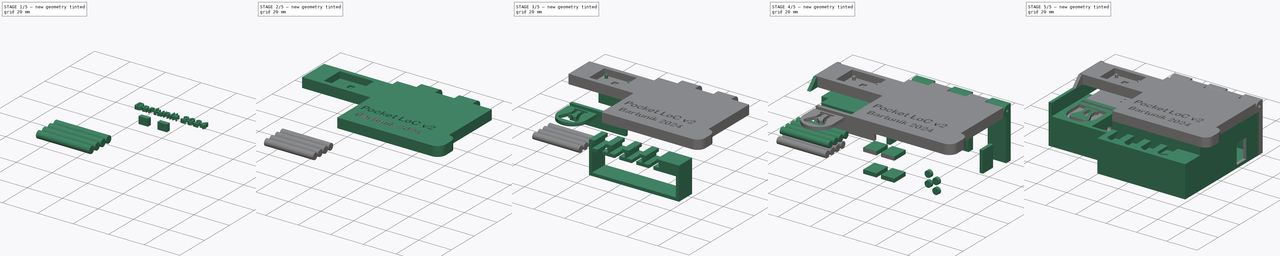
[diagram: build sequence overview — one tinted view per stage of 5, left to right]
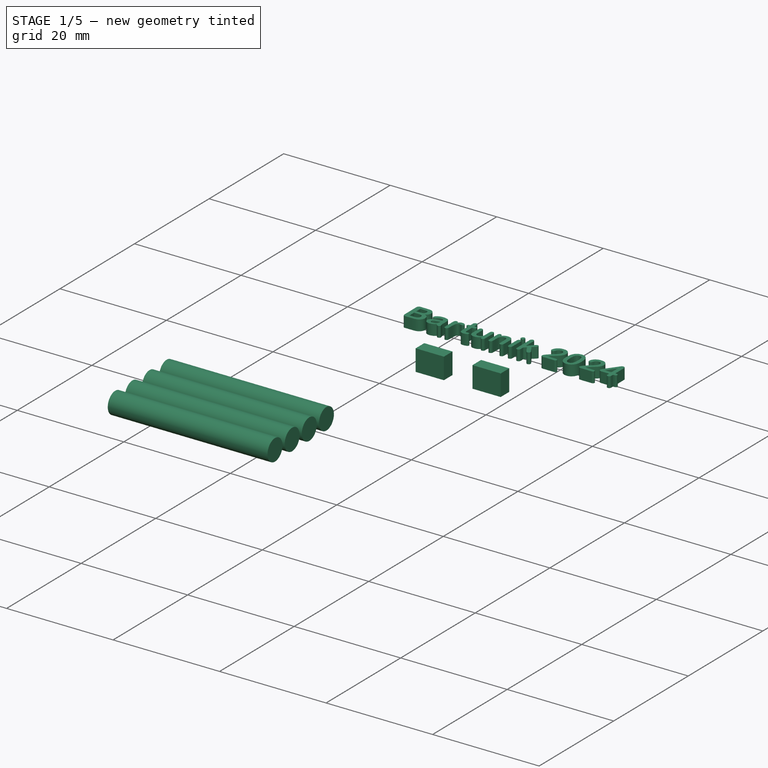
[diagram: stage 1 of 5 — iso view after this stage's code; geometry added in this stage tinted green]
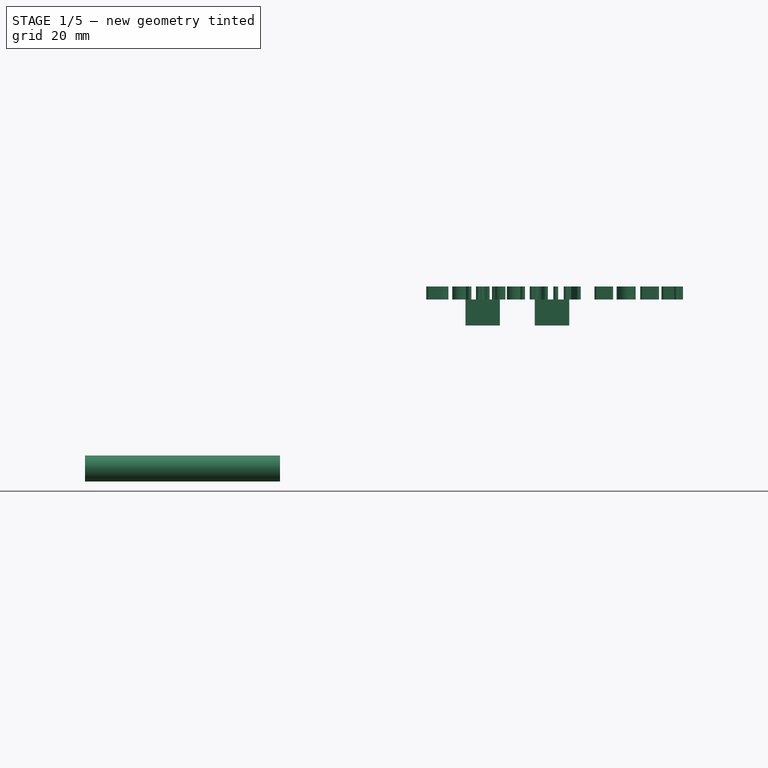
[diagram: stage 1 of 5 — front view after this stage's code; geometry added in this stage tinted green]
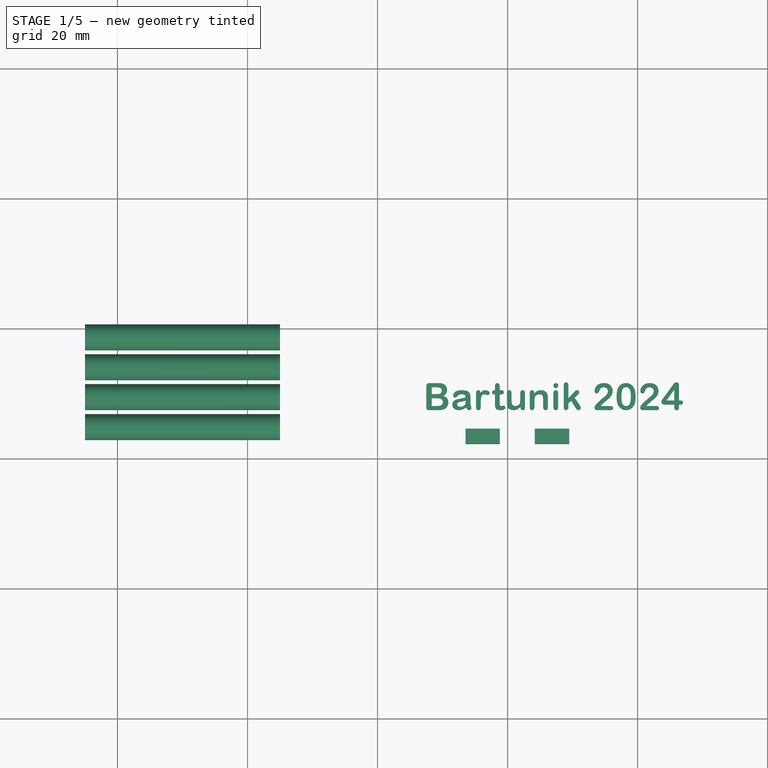
[diagram: stage 1 of 5 — top view after this stage's code; geometry added in this stage tinted green]
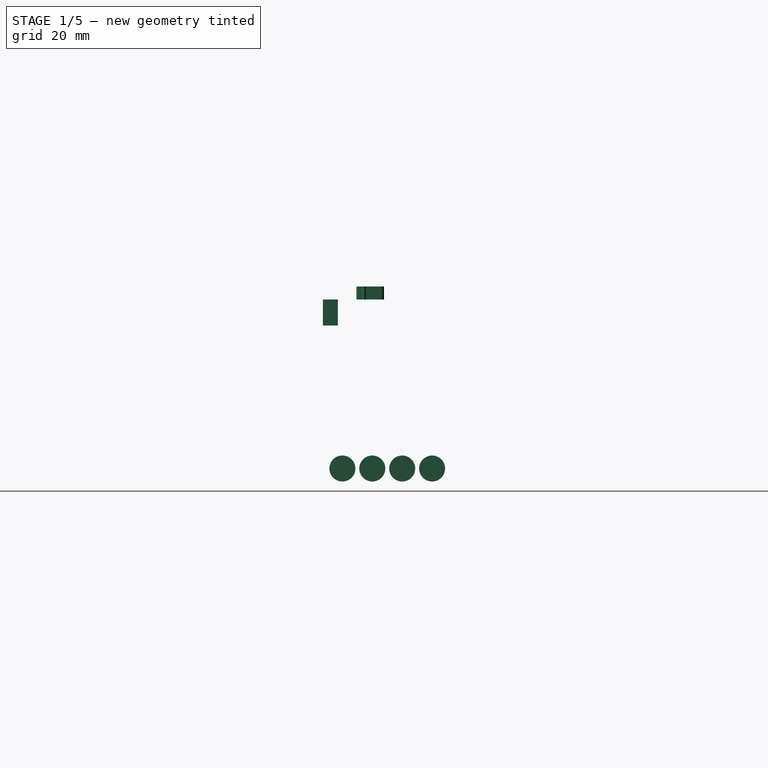
[diagram: stage 1 of 5 — right view after this stage's code; geometry added in this stage tinted green]
FCSTD DOCUMENT  (FreeCAD 0.20R29410 (Git))
Label: Housing v2
License: All rights reserved
LicenseURL: http://en.wikipedia.org/wiki/All_rights_reserved
objects: Part::Extrusion×36, Sketcher::SketchObject×33, Part::MultiFuse×5, Part::FeaturePython×2, Part::Part2DObjectPython×2, Part::Cut×2, Spreadsheet::Sheet×1
note: 78 computed .brp shape members not serialized (recipe doc carries the construction recipe); baked Part::Feature solids carry a one-line shape summary decoded from their .brp

FEATURE [Part::Extrusion] Extrude001  label="outer_wall_body"
  Base = -> Sketch002
  Dir = (0,0,1)
  DirMode = 2
  FaceMakerClass = Part::FaceMakerBullseye
  LengthFwd = 24
  LengthRev = 0
  Solid = true
  Symmetric = false
  expr: LengthFwd = <<params>>.box_height
FEATURE [Part::Extrusion] Extrude002  label="measurement_base_body"
  Base = -> Sketch001
  Dir = (0,0,1)
  DirMode = 2
  FaceMakerClass = Part::FaceMakerBullseye
  LengthFwd = 16
  LengthRev = 0
  Solid = true
  Symmetric = false
  expr: LengthFwd = <<params>>.measurement_height
FEATURE [Part::Extrusion] Extrude003  label="pump_holder_body"
  Base = -> Sketch003
  Dir = (0,0,1)
  DirMode = 2
  FaceMakerClass = Part::FaceMakerBullseye
  LengthFwd = 16
  LengthRev = 0
  Solid = true
  Symmetric = false
  expr: LengthFwd = <<params>>.pump_stack_height
FEATURE [Sketcher::SketchObject] Sketch006  label="sensor_space"
  ExternalGeometry = -> [Extrude002]
  FullyConstrained = true
  MapMode = 5
  Placement = pos=(42,0,0) rot=(0.57735,0.57735,0.57735;2.0944rad)
  Support = -> [Extrude002]
  sketch-geometry (16):
    g0: LineSegment StartX=29.125 StartY=16 StartZ=0 EndX=48.375 EndY=16 EndZ=0
    g1: LineSegment StartX=48.375 StartY=16 StartZ=0 EndX=48.375 EndY=14.5 EndZ=0
    g2: LineSegment StartX=29.125 StartY=16 StartZ=0 EndX=29.125 EndY=14.5 EndZ=0
    g3: LineSegment StartX=29.125 StartY=14.5 StartZ=0 EndX=31.125 EndY=14.5 EndZ=0
    g4: LineSegment StartX=31.125 StartY=14.5 StartZ=0 EndX=31.125 EndY=11.5 EndZ=0
    g5: LineSegment StartX=31.125 StartY=11.5 StartZ=0 EndX=32.125 EndY=11.5 EndZ=0
    g6: LineSegment StartX=32.125 StartY=11.5 StartZ=0 EndX=32.125 EndY=8 EndZ=0
    g7: LineSegment StartX=32.125 StartY=8 StartZ=0 EndX=45.375 EndY=8 EndZ=0
    g8: LineSegment StartX=45.375 StartY=8 StartZ=0 EndX=45.375 EndY=11.5 EndZ=0
    g9: LineSegment StartX=45.375 StartY=11.5 StartZ=0 EndX=46.375 EndY=11.5 EndZ=0
    g10: LineSegment StartX=46.375 StartY=11.5 StartZ=0 EndX=46.375 EndY=14.5 EndZ=0
    g11: LineSegment StartX=46.375 StartY=14.5 StartZ=0 EndX=48.375 EndY=14.5 EndZ=0
    g12: LineSegment StartX=31.125 StartY=14.5 StartZ=0 EndX=46.375 EndY=14.5 EndZ=0
    g13: LineSegment StartX=32.125 StartY=11.5 StartZ=0 EndX=45.375 EndY=11.5 EndZ=0
    g14: LineSegment StartX=48.375 StartY=16 StartZ=0 EndX=22.5 EndY=16 EndZ=0
    g15: LineSegment StartX=29.125 StartY=16 StartZ=0 EndX=55 EndY=16 EndZ=0
  constraints (44):
    c: Horizontal(g0)
    c: Coincident(g1,g0)
    c: Coincident(g2,g0)
    c: Coincident(g3,g2)
    c: Coincident(g4,g3)
    c: Vertical(g4)
    c: Coincident(g5,g4)
    c: Horizontal(g5)
    c: Coincident(g6,g5)
    c: Coincident(g7,g6)
    c: Horizontal(g7)
    c: Coincident(g8,g7)
    c: Vertical(g8)
    c: Coincident(g9,g8)
    c: Horizontal(g9)
    c: Coincident(g10,g9)
    c: Coincident(g11,g10)
    c: Horizontal(g11)
    c: Coincident(g1,g11)
    c: Vertical(g1)
    c: Vertical(g10)
    c: Vertical(g6)
    c: Horizontal(g3)
    c: Vertical(g2)
    c: Equal(g3,g11)
    c: DistanceX(g11,g11) = 2
    c: Equal(g5,g9)
    c: DistanceX(g9,g9) = 1
    c: Coincident(g12,g3)
    c: Coincident(g12,g10)
    c: Horizontal(g12)
    c: DistanceX(g12,g12) = 15.25
    c: Coincident(g13,g5)
    c: Coincident(g13,g8)
    c: Horizontal(g13)
    c: DistanceY(g4,g4) = 3
    c: DistanceY(g2,g2) = 1.5
    c: DistanceY(g6,g6) = 3.5
    c: Coincident(g14,g0)
    c: Coincident(g14,g-3)
    c: Coincident(g15,g0)
    c: Coincident(g15,g-4)
    c: Equal(g15,g14)
    c: Horizontal(g14)
FEATURE [Part::Extrusion] Extrude006  label="sensor_space_body"
  Base = -> Sketch006
  Dir = (1,0,0)
  DirMode = 2
  FaceMakerClass = Part::FaceMakerBullseye
  LengthFwd = 0
  LengthRev = 35.5
  Placement = pos=(-2.25,0,0) rot=(0,0,1;0rad)
  Solid = true
  Symmetric = false
  expr: .Placement.Base.x = -(<<params>>.measurement_width * 1mm - LengthRev) / 2
FEATURE [Sketcher::SketchObject] Sketch012  label="top_plane"
  ExternalGeometry = -> [Extrude001,Extrude006]
  FullyConstrained = true
  MapMode = 5
  Placement = pos=(0,0,24) rot=(0,0,1;0rad)
  Support = -> [Extrude001]
  expr: Constraints[20] = <<params>>.box_wall + 0.5
  sketch-geometry (12):
    g0: LineSegment StartX=100 StartY=52.5 StartZ=0 EndX=42 EndY=52.5 EndZ=0
    g1: LineSegment StartX=42 StartY=0 StartZ=0 EndX=100 EndY=0 EndZ=0
    g2: LineSegment StartX=42 StartY=52.5 StartZ=0 EndX=42 EndY=48.375 EndZ=0
    g3: LineSegment StartX=42 StartY=0 StartZ=0 EndX=42 EndY=29.125 EndZ=0
    g4: LineSegment StartX=42 StartY=48.375 StartZ=0 EndX=0 EndY=48.375 EndZ=0
    g5: LineSegment StartX=42 StartY=29.125 StartZ=0 EndX=0 EndY=29.125 EndZ=0
    g6: LineSegment StartX=0 StartY=48.375 StartZ=0 EndX=0 EndY=29.125 EndZ=0
    g7: LineSegment StartX=42 StartY=52.5 StartZ=0 EndX=42 EndY=55 EndZ=0
    g8: LineSegment StartX=100 StartY=52.5 StartZ=0 EndX=100 EndY=15 EndZ=0
    g9: ArcOfCircle CenterX=100 CenterY=5 CenterZ=0 NormalX=0 NormalY=0 NormalZ=1 AngleXU=0 Radius=5 StartAngle=4.71239 EndAngle=6.28319
    g10: ArcOfCircle CenterX=100 CenterY=10 CenterZ=0 NormalX=0 NormalY=0 NormalZ=1 AngleXU=0 Radius=5 StartAngle=0 EndAngle=1.5708
    g11: LineSegment StartX=105 StartY=10 StartZ=0 EndX=105 EndY=5 EndZ=0
  constraints (33):
    c: Coincident(g2,g0)
    c: Coincident(g3,g1)
    c: Vertical(g3)
    c: Vertical(g2)
    c: Coincident(g1,g-5)
    c: Coincident(g4,g2)
    c: PointOnObject(g4,g-6)
    c: Horizontal(g4)
    c: Coincident(g5,g3)
    c: PointOnObject(g5,g-6)
    c: Horizontal(g5)
    c: Coincident(g6,g4)
    c: Coincident(g6,g5)
    c: PointOnObject(g-7,g4)
    c: PointOnObject(g-8,g5)
    c: Horizontal(g0)
    c: Coincident(g1,g-5)
    c: Coincident(g7,g0)
    c: Coincident(g7,g-4)
    c: Vertical(g7)
    c: DistanceY(g7,g7) = 2.5
    c: Coincident(g8,g0)
    c: PointOnObject(g8,g-3)
    c: Vertical(g8)
    c: Vertical(g11)
    c: Coincident(g9,g1)
    c: Coincident(g10,g8)
    c: PointOnObject(g10,g-3)
    c: PointOnObject(g9,g-3)
    c: Tangent(g11,g10) = 1.5708
    c: Tangent(g11,g9) = 1.5708
    c: DistanceX(g9,g9) = 5
    c: DistanceY(g1,g8) = 15
FEATURE [Part::Extrusion] Extrude012  label="top_plane_body"
  Base = -> Sketch012
  Dir = (0,0,1)
  DirMode = 2
  FaceMakerClass = Part::FaceMakerBullseye
  LengthFwd = 6
  LengthRev = 0
  Solid = true
  Symmetric = false
FEATURE [Part::Extrusion] Extrude025  label="label_maker_body"
  Base = -> ShapeString001
  Dir = (0,0,1)
  DirMode = 2
  FaceMakerClass = Part::FaceMakerBullseye
  LengthFwd = 0
  LengthRev = 2
  Solid = false
  Symmetric = false
FEATURE [Sketcher::SketchObject] Sketch030  label="top_pins"
  ExternalGeometry = -> [Extrude001,Extrude003]
  FullyConstrained = true
  MapMode = 5
  Placement = pos=(0,2,0) rot=(0,0.707107,0.707107;3.14159rad)
  Support = -> [Extrude001]
  sketch-geometry (12):
    g0: LineSegment StartX=-69.3333 StartY=27 StartZ=0 EndX=-64.3333 EndY=27 EndZ=0
    g1: LineSegment StartX=-64.3333 StartY=27 StartZ=0 EndX=-64.3333 EndY=16 EndZ=0
    g2: LineSegment StartX=-64.3333 StartY=16 StartZ=0 EndX=-69.3333 EndY=16 EndZ=0
    g3: LineSegment StartX=-69.3333 StartY=16 StartZ=0 EndX=-69.3333 EndY=27 EndZ=0
    g4: LineSegment StartX=-58.6667 StartY=27 StartZ=0 EndX=-53.6667 EndY=27 EndZ=0
    g5: LineSegment StartX=-53.6667 StartY=27 StartZ=0 EndX=-53.6667 EndY=16 EndZ=0
    g6: LineSegment StartX=-53.6667 StartY=16 StartZ=0 EndX=-58.6667 EndY=16 EndZ=0
    g7: LineSegment StartX=-58.6667 StartY=16 StartZ=0 EndX=-58.6667 EndY=27 EndZ=0
    g8: LineSegment StartX=-58.6667 StartY=27 StartZ=0 EndX=-64.3333 EndY=27 EndZ=0
    g9: LineSegment StartX=-75 StartY=16 StartZ=0 EndX=-69.3333 EndY=16 EndZ=0
    g10: LineSegment StartX=-64.3333 StartY=16 StartZ=0 EndX=-58.6667 EndY=16 EndZ=0
    g11: LineSegment StartX=-53.6667 StartY=16 StartZ=0 EndX=-48 EndY=16 EndZ=0
  constraints (32):
    c: Coincident(g0,g1)
    c: Coincident(g1,g2)
    c: Coincident(g2,g3)
    c: Coincident(g3,g0)
    c: Horizontal(g0)
    c: Horizontal(g2)
    c: Vertical(g1)
    c: Vertical(g3)
    c: PointOnObject(g1,g-4)
    c: Coincident(g4,g5)
    c: Coincident(g5,g6)
    c: Coincident(g6,g7)
    c: Coincident(g7,g4)
    c: Horizontal(g4)
    c: Horizontal(g6)
    c: Vertical(g5)
    c: Vertical(g7)
    c: PointOnObject(g5,g-4)
    c: Coincident(g8,g4)
    c: Coincident(g8,g0)
    c: Horizontal(g8)
    c: Equal(g0,g4)
    c: DistanceX(g0,g0) = 5
    c: Coincident(g9,g-4)
    c: Coincident(g9,g2)
    c: Coincident(g10,g1)
    c: Coincident(g10,g6)
    c: Coincident(g11,g5)
    c: Coincident(g11,g-4)
    c: Equal(g11,g10)
    c: Equal(g10,g9)
    c: DistanceY(g-3,g4) = 3
FEATURE [Part::Extrusion] Extrude032  label="top_pins_body"
  Base = -> Sketch030
  Dir = (0,1,-2e-16)
  DirMode = 2
  FaceMakerClass = Part::FaceMakerBullseye
  LengthFwd = 2
  LengthRev = 0
  Solid = true
  Symmetric = false
FEATURE [Sketcher::SketchObject] Sketch031  label="pin_holes"
  ExternalGeometry = -> [Extrude032]
  FullyConstrained = true
  MapMode = 5
  Placement = pos=(0,0,24) rot=(1,0,0;3.14159rad)
  Support = -> [Extrude012]
  sketch-geometry (16):
    g0: LineSegment StartX=53.6667 StartY=-2 StartZ=0 EndX=53.5167 EndY=-2 EndZ=0
    g1: LineSegment StartX=58.6667 StartY=-2 StartZ=0 EndX=58.6667 EndY=-1.85 EndZ=0
    g2: LineSegment StartX=64.3333 StartY=-2 StartZ=0 EndX=64.1833 EndY=-2 EndZ=0
    g3: LineSegment StartX=69.3333 StartY=-2 StartZ=0 EndX=69.3333 EndY=-1.85 EndZ=0
    g4: LineSegment StartX=53.5167 StartY=-1.85 StartZ=0 EndX=58.8167 EndY=-1.85 EndZ=0
    g5: LineSegment StartX=58.8167 StartY=-1.85 StartZ=0 EndX=58.8167 EndY=-4.15 EndZ=0
    g6: LineSegment StartX=58.8167 StartY=-4.15 StartZ=0 EndX=53.5167 EndY=-4.15 EndZ=0
    g7: LineSegment StartX=53.5167 StartY=-4.15 StartZ=0 EndX=53.5167 EndY=-1.85 EndZ=0
    g8: LineSegment StartX=64.1833 StartY=-1.85 StartZ=0 EndX=69.4833 EndY=-1.85 EndZ=0
    g9: LineSegment StartX=69.4833 StartY=-1.85 StartZ=0 EndX=69.4833 EndY=-4.15 EndZ=0
    g10: LineSegment StartX=69.4833 StartY=-4.15 StartZ=0 EndX=64.1833 EndY=-4.15 EndZ=0
    g11: LineSegment StartX=64.1833 StartY=-4.15 StartZ=0 EndX=64.1833 EndY=-1.85 EndZ=0
    g12: LineSegment StartX=58.6667 StartY=-4 StartZ=0 EndX=58.8167 EndY=-4 EndZ=0
    g13: LineSegment StartX=53.6667 StartY=-4 StartZ=0 EndX=53.6667 EndY=-4.15 EndZ=0
    g14: LineSegment StartX=64.3333 StartY=-4 StartZ=0 EndX=64.3333 EndY=-4.15 EndZ=0
    g15: LineSegment StartX=69.3333 StartY=-4 StartZ=0 EndX=69.4833 EndY=-4 EndZ=0
  constraints (48):
    c: Coincident(g0,g-5)
    c: Coincident(g1,g-5)
    c: Coincident(g2,g-3)
    c: Coincident(g3,g-3)
    c: Vertical(g3)
    c: Equal(g3,g2)
    c: Equal(g1,g0)
    c: Vertical(g1)
    c: Horizontal(g2)
    c: Horizontal(g0)
    c: Distance(g1) = 0.15
    c: Coincident(g4,g5)
    c: Coincident(g5,g6)
    c: Coincident(g6,g7)
    c: Coincident(g7,g4)
    c: Horizontal(g4)
    c: Horizontal(g6)
    c: Vertical(g5)
    c: Vertical(g7)
    c: PointOnObject(g0,g7)
    c: PointOnObject(g1,g4)
    c: Coincident(g8,g9)
    c: Coincident(g9,g10)
    c: Coincident(g10,g11)
    c: Coincident(g11,g8)
    c: Horizontal(g8)
    c: Horizontal(g10)
    c: Vertical(g9)
    c: Vertical(g11)
    c: PointOnObject(g2,g11)
    c: PointOnObject(g3,g8)
    c: Coincident(g12,g-6)
    c: PointOnObject(g12,g5)
    c: Coincident(g13,g-6)
    c: PointOnObject(g13,g6)
    c: Coincident(g14,g-4)
    c: PointOnObject(g14,g10)
    c: Coincident(g15,g-4)
    c: PointOnObject(g15,g9)
    c: Horizontal(g12)
    c: Vertical(g13)
    c: Horizontal(g15)
    c: Vertical(g14)
    c: Equal(g14,g15)
    c: Equal(g15,g12)
    c: Equal(g12,g13)
    c: Equal(g13,g1)
    c: Equal(g2,g1)
FEATURE [Part::Extrusion] Extrude033  label="pin_holes_body"
  Base = -> Sketch031
  Dir = (0,0,-1)
  DirMode = 2
  FaceMakerClass = Part::FaceMakerBullseye
  LengthFwd = 0
  LengthRev = 4
  Solid = true
  Symmetric = false
FEATURE [Part::Extrusion] Extrude035  label="storage_tube_holes"
  Base = -> Sketch010
  Dir = (1,0,0)
  DirMode = 2
  FaceMakerClass = Part::FaceMakerBullseye
  LengthFwd = 0
  LengthRev = 30
  Placement = pos=(-2,0,-6) rot=(0,0,1;0rad)
  Solid = true
  Symmetric = false
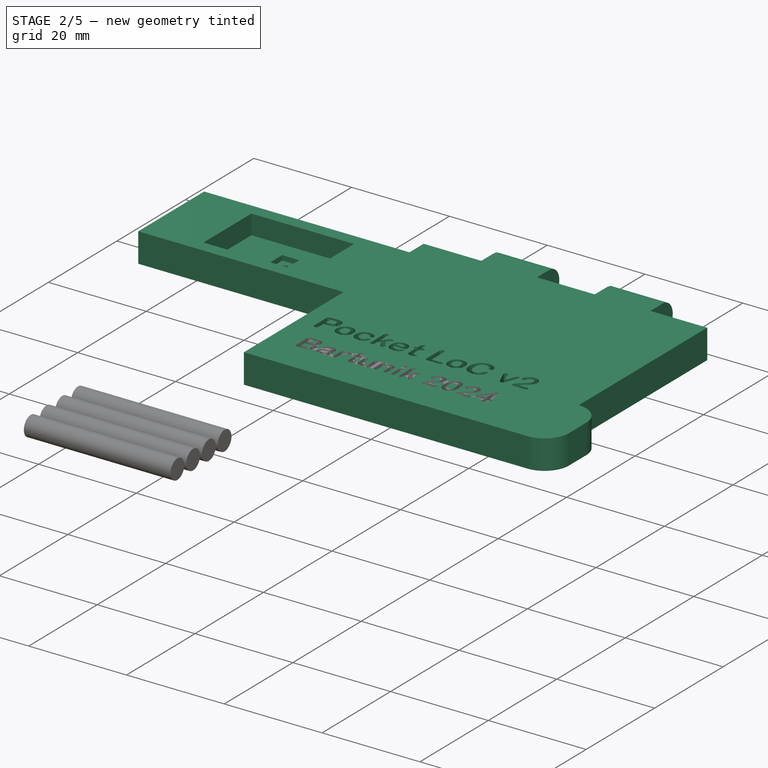
[diagram: stage 2 of 5 — iso view after this stage's code; geometry added in this stage tinted green]
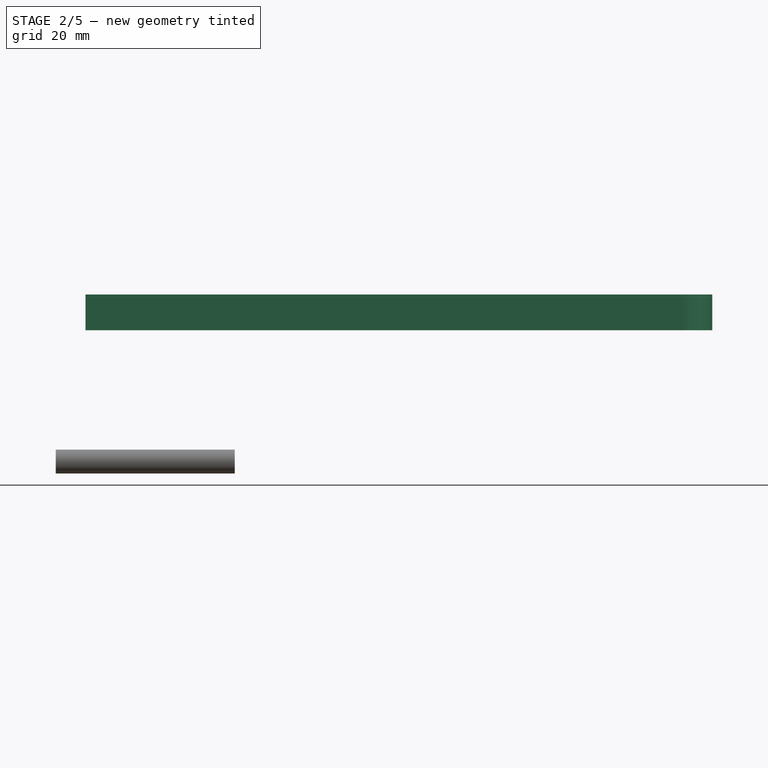
[diagram: stage 2 of 5 — front view after this stage's code; geometry added in this stage tinted green]
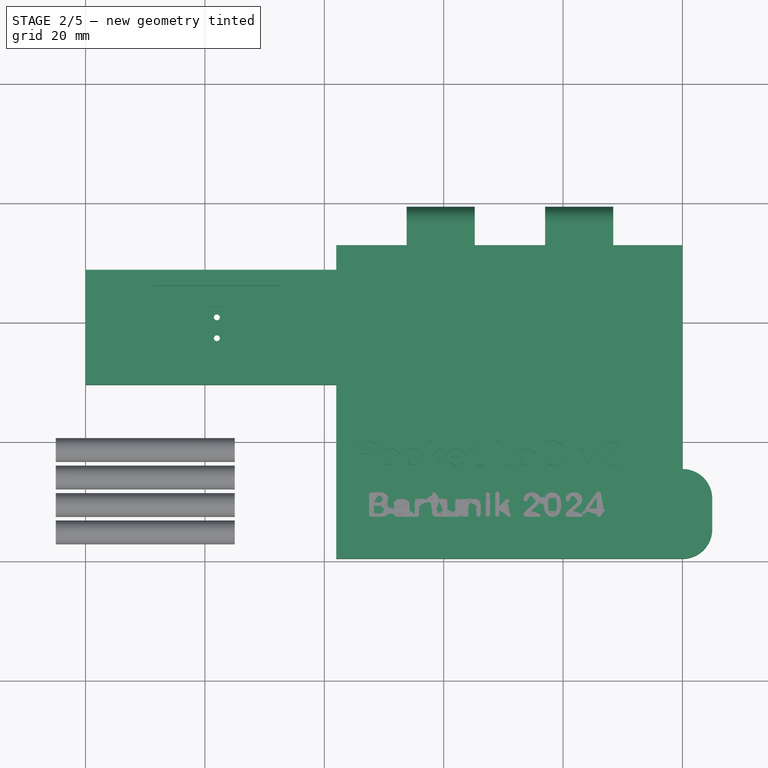
[diagram: stage 2 of 5 — top view after this stage's code; geometry added in this stage tinted green]
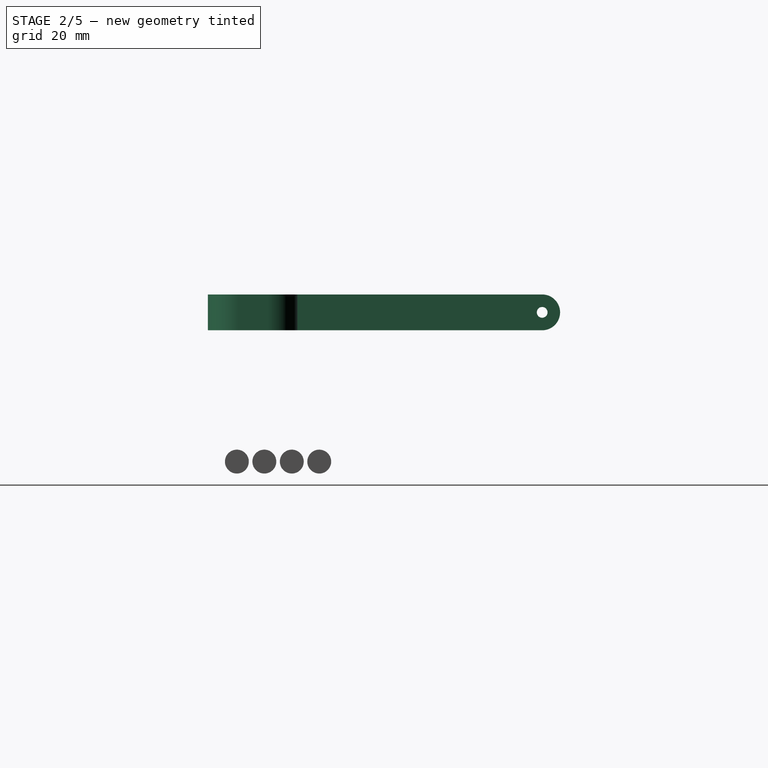
[diagram: stage 2 of 5 — right view after this stage's code; geometry added in this stage tinted green]
FEATURE [Sketcher::SketchObject] Sketch013  label="led_board_space"
  ExternalGeometry = -> [Extrude006]
  FullyConstrained = true
  MapMode = 5
  Placement = pos=(0,0,30) rot=(0,0,1;0rad)
  Support = -> [Extrude012]
  sketch-geometry (5):
    g0: LineSegment StartX=11.5 StartY=45.75 StartZ=0 EndX=32.5 EndY=45.75 EndZ=0
    g1: LineSegment StartX=32.5 StartY=45.75 StartZ=0 EndX=32.5 EndY=31.75 EndZ=0
    g2: LineSegment StartX=32.5 StartY=31.75 StartZ=0 EndX=11.5 EndY=31.75 EndZ=0
    g3: LineSegment StartX=11.5 StartY=31.75 StartZ=0 EndX=11.5 EndY=45.75 EndZ=0
    g4: GeomPoint X=22 Y=38.75 Z=0
  constraints (12):
    c: Coincident(g0,g1)
    c: Coincident(g1,g2)
    c: Coincident(g2,g3)
    c: Coincident(g3,g0)
    c: Horizontal(g0)
    c: Horizontal(g2)
    c: Vertical(g1)
    c: Vertical(g3)
    c: DistanceY(g1,g1) = 14
    c: DistanceX(g0,g0) = 21
    c: Symmetric(g0,g1,g4)
    c: Symmetric(g-3,g-4,g4)
FEATURE [Part::Extrusion] Extrude013  label="led_board_space_body"
  Base = -> Sketch013
  Dir = (0,0,1)
  DirMode = 2
  FaceMakerClass = Part::FaceMakerBullseye
  LengthFwd = 0
  LengthRev = 4
  Solid = true
  Symmetric = false
FEATURE [Sketcher::SketchObject] Sketch018  label="led_space"
  ExternalGeometry = -> [Sketch013]
  FullyConstrained = true
  MapMode = 5
  Placement = pos=(0,0,26) rot=(1,0,0;3.14159rad)
  Support = -> [Extrude013]
  sketch-geometry (5):
    g0: LineSegment StartX=20.25 StartY=-35.25 StartZ=0 EndX=23.75 EndY=-35.25 EndZ=0
    g1: LineSegment StartX=23.75 StartY=-35.25 StartZ=0 EndX=23.75 EndY=-42.25 EndZ=0
    g2: LineSegment StartX=23.75 StartY=-42.25 StartZ=0 EndX=20.25 EndY=-42.25 EndZ=0
    g3: LineSegment StartX=20.25 StartY=-42.25 StartZ=0 EndX=20.25 EndY=-35.25 EndZ=0
    g4: GeomPoint X=22 Y=-38.75 Z=0
  constraints (12):
    c: Coincident(g0,g1)
    c: Coincident(g1,g2)
    c: Coincident(g2,g3)
    c: Coincident(g3,g0)
    c: Horizontal(g0)
    c: Horizontal(g2)
    c: Vertical(g1)
    c: Vertical(g3)
    c: DistanceY(g3,g3) = 7
    c: DistanceX(g0,g0) = 3.5
    c: Symmetric(g0,g1,g4)
    c: Symmetric(g-3,g-4,g4)
FEATURE [Part::Extrusion] Extrude018  label="led_space_body"
  Base = -> Sketch018
  Dir = (0,0,-1)
  DirMode = 2
  FaceMakerClass = Part::FaceMakerBullseye
  LengthFwd = 1
  LengthRev = 0
  Solid = true
  Symmetric = false
FEATURE [Sketcher::SketchObject] Sketch019  label="led_holes"
  ExternalGeometry = -> [Sketch018]
  FullyConstrained = true
  MapMode = 5
  Placement = pos=(0,0,25) rot=(1,0,0;3.14159rad)
  Support = -> [Extrude018]
  sketch-geometry (4):
    g0: Circle CenterX=22 CenterY=-37 CenterZ=0 NormalX=0 NormalY=0 NormalZ=1 AngleXU=0 Radius=0.5
    g1: Circle CenterX=22 CenterY=-40.5 CenterZ=0 NormalX=0 NormalY=0 NormalZ=1 AngleXU=0 Radius=0.5
    g2: LineSegment StartX=22 StartY=-37 StartZ=0 EndX=22 EndY=-38.75 EndZ=0
    g3: LineSegment StartX=22 StartY=-40.5 StartZ=0 EndX=22 EndY=-38.75 EndZ=0
  constraints (10):
    c: Equal(g0,g1)
    c: Coincident(g2,g0)
    c: Vertical(g2)
    c: Coincident(g3,g1)
    c: Coincident(g3,g2)
    c: Vertical(g3)
    c: Equal(g2,g3)
    c: Symmetric(g-3,g-4,g2)
    c: Diameter(g0) = 1
    c: DistanceY(g1,g0) = 3.5
FEATURE [Part::Extrusion] Extrude019  label="led_holes_body"
  Base = -> Sketch019
  Dir = (0,0,-1)
  DirMode = 2
  FaceMakerClass = Part::FaceMakerBullseye
  LengthFwd = 2
  LengthRev = 0
  Solid = true
  Symmetric = false
FEATURE [Sketcher::SketchObject] Sketch020  label="fcc_trench"
  ExternalGeometry = -> [Sketch013,Sketch012]
  FullyConstrained = true
  MapMode = 5
  Placement = pos=(0,0,24) rot=(1,0,0;3.14159rad)
  Support = -> [Extrude012]
  sketch-geometry (8):
    g0: LineSegment StartX=32.5 StartY=-35.25 StartZ=0 EndX=51 EndY=-35.25 EndZ=0
    g1: LineSegment StartX=32.5 StartY=-42.25 StartZ=0 EndX=32.5 EndY=-35.25 EndZ=0
    g2: LineSegment StartX=51 StartY=-51.5 StartZ=0 EndX=44 EndY=-51.5 EndZ=0
    g3: LineSegment StartX=44 StartY=-51.5 StartZ=0 EndX=44 EndY=-42.25 EndZ=0
    g4: LineSegment StartX=51 StartY=-35.25 StartZ=0 EndX=51 EndY=-51.5 EndZ=0
    g5: LineSegment StartX=44 StartY=-42.25 StartZ=0 EndX=32.5 EndY=-42.25 EndZ=0
    g6: LineSegment StartX=32.5 StartY=-31.75 StartZ=0 EndX=32.5 EndY=-35.25 EndZ=0
    g7: LineSegment StartX=32.5 StartY=-42.25 StartZ=0 EndX=32.5 EndY=-45.75 EndZ=0
  constraints (22):
    c: Coincident(g1,g0)
    c: Horizontal(g0)
    c: Vertical(g1)
    c: Coincident(g2,g3)
    c: Coincident(g4,g2)
    c: Horizontal(g2)
    c: Vertical(g3)
    c: Vertical(g4)
    c: Coincident(g4,g0)
    c: Coincident(g5,g3)
    c: Coincident(g5,g1)
    c: Horizontal(g5)
    c: Equal(g2,g1)
    c: PointOnObject(g0,g-3)
    c: Coincident(g6,g-3)
    c: Coincident(g6,g0)
    c: Coincident(g7,g1)
    c: Coincident(g7,g-3)
    c: Equal(g7,g6)
    c: DistanceY(g1,g1) = 7
    c: DistanceX(g-4,g2) = 2
    c: DistanceY(g-4,g2) = 1
FEATURE [Part::Extrusion] Extrude020  label="fcc_trench_body"
  Base = -> Sketch020
  Dir = (0,0,-1)
  DirMode = 2
  FaceMakerClass = Part::FaceMakerBullseye
  LengthFwd = 0
  LengthRev = 4
  Solid = true
  Symmetric = false
FEATURE [Sketcher::SketchObject] Sketch023  label="top_hinge"
  ExternalGeometry = -> [Sketch011,Extrude012]
  FullyConstrained = true
  MapMode = 5
  Placement = pos=(100,0,0) rot=(0.57735,0.57735,0.57735;2.0944rad)
  Support = -> [Extrude012]
  sketch-geometry (8):
    g0: Circle CenterX=56 CenterY=27 CenterZ=0 NormalX=0 NormalY=0 NormalZ=1 AngleXU=0 Radius=0.9
    g1: LineSegment StartX=55.1 StartY=27 StartZ=0 EndX=55 EndY=27 EndZ=0
    g2: LineSegment StartX=55 StartY=27 StartZ=0 EndX=56 EndY=27 EndZ=0
    g3: LineSegment StartX=56 StartY=30 StartZ=0 EndX=52.5 EndY=30 EndZ=0
    g4: LineSegment StartX=56 StartY=24 StartZ=0 EndX=52.5 EndY=24 EndZ=0
    g5: LineSegment StartX=56 StartY=30 StartZ=0 EndX=56 EndY=27 EndZ=0
    g6: LineSegment StartX=52.5 StartY=30 StartZ=0 EndX=52.5 EndY=24 EndZ=0
    g7: ArcOfCircle CenterX=56 CenterY=27 CenterZ=0 NormalX=0 NormalY=0 NormalZ=1 AngleXU=0 Radius=3 StartAngle=4.7124 EndAngle=7.85398
  constraints (20):
    c: Coincident(g0,g-3)
    c: PointOnObject(g1,g0)
    c: PointOnObject(g1,g-3)
    c: Horizontal(g1)
    c: Coincident(g2,g1)
    c: Coincident(g2,g0)
    c: Horizontal(g2)
    c: DistanceX(g1,g1) = 0.1
    c: Horizontal(g3)
    c: Horizontal(g4)
    c: Coincident(g5,g0)
    c: Vertical(g5)
    c: Coincident(g3,g-5)
    c: Coincident(g4,g-5)
    c: Coincident(g6,g3)
    c: Coincident(g6,g4)
    c: Coincident(g3,g5)
    c: Coincident(g7,g0)
    c: Coincident(g7,g3)
    c: Coincident(g7,g4)
FEATURE [Part::Extrusion] Extrude023  label="top_hinge_body"
  Base = -> Sketch023
  Dir = (1,0,0)
  DirMode = 2
  FaceMakerClass = Part::FaceMakerBullseye
  LengthFwd = 0
  LengthRev = 11.4
  Placement = pos=(-11.6,0,0) rot=(0,0,1;0rad)
  Solid = true
  Symmetric = false
  expr: .Placement.Base.x = -(<<params>>.hinge_segment_size + <<params>>.hinge_tolerance)
  expr: LengthRev = <<params>>.hinge_segment_size
FEATURE [Part::FeaturePython] Array001  label="top_hinges"  # Draft array (typed FeaturePython)
  AlwaysSyncPlacement = false
  Angle = 360
  ArrayType = 0
  Axis = (0,0,1)
  Base = -> Extrude023
  Center = (0,0,0)
  Count = 2
  ExpandArray = false
  Fuse = false
  IntervalAxis = (0,0,0)
  IntervalX = (-23.2,0,0)
  IntervalY = (0,100,0)
  IntervalZ = (0,0,100)
  NumberCircles = 3
  NumberPolar = 5
  NumberX = 2
  NumberY = 1
  NumberZ = 1
  PlacementList = 2 placements: [(-11.6,0,0),(-34.8,0,0)]
  RadialDistance = 50
  ScaleList = (2) [(1,1,1),(1,1,1)]
  Symmetry = 1
  TangentialDistance = 25
  expr: .IntervalX.x = -(<<params>>.hinge_segment_size + <<params>>.hinge_tolerance) * 2
FEATURE [Part::Part2DObjectPython] ShapeString  label="label_title"  # Draft 2D object (typed FeaturePython)
  FontFile = Arial Bold Font.TTF
  Placement = pos=(45,15,30) rot=(0,0,1;0rad)
  Size = 5
  String = Pocket LoC v2
  Tracking = 0
FEATURE [Part::Part2DObjectPython] ShapeString001  label="label_maker"  # Draft 2D object (typed FeaturePython)
  FontFile = Arial Bold Font.TTF
  Placement = pos=(47,7,30) rot=(0,0,1;0rad)
  Size = 4.5
  String = Bartunik 2024
  Tracking = 0
FEATURE [Part::Extrusion] Extrude024  label="label_title_body"
  Base = -> ShapeString
  Dir = (0,0,1)
  DirMode = 2
  FaceMakerClass = Part::FaceMakerBullseye
  LengthFwd = 0
  LengthRev = 2
  Solid = false
  Symmetric = false
FEATURE [Part::MultiFuse] Fusion006  label="top_cuts"
  Shapes = -> [Extrude013,Extrude018,Extrude019,Extrude020,Extrude024,Extrude025,Extrude033]
FEATURE [Part::Cut] Cut001  label="top_raw"
  Base = -> Extrude012
  Tool = -> Fusion006
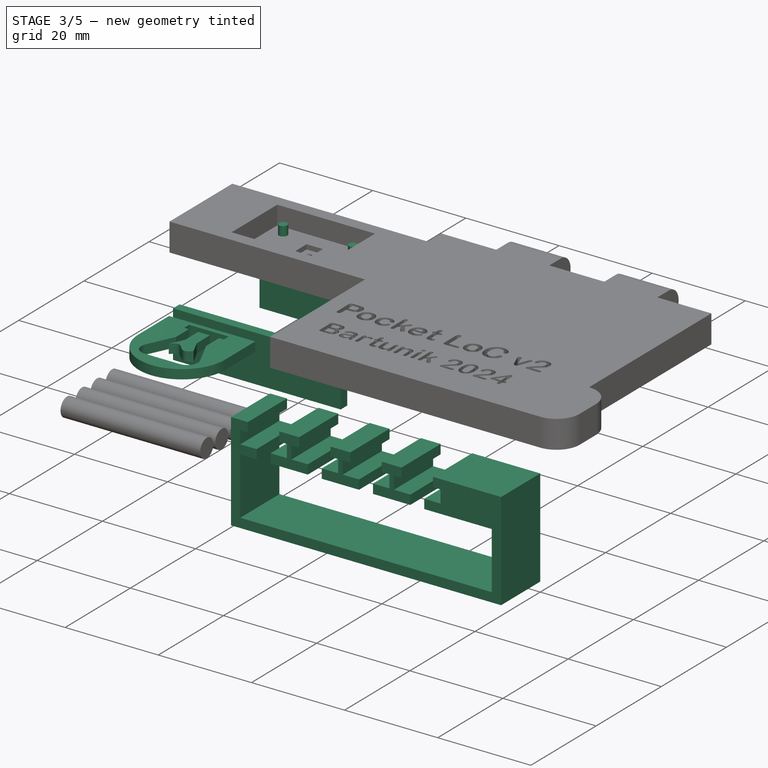
[diagram: stage 3 of 5 — iso view after this stage's code; geometry added in this stage tinted green]
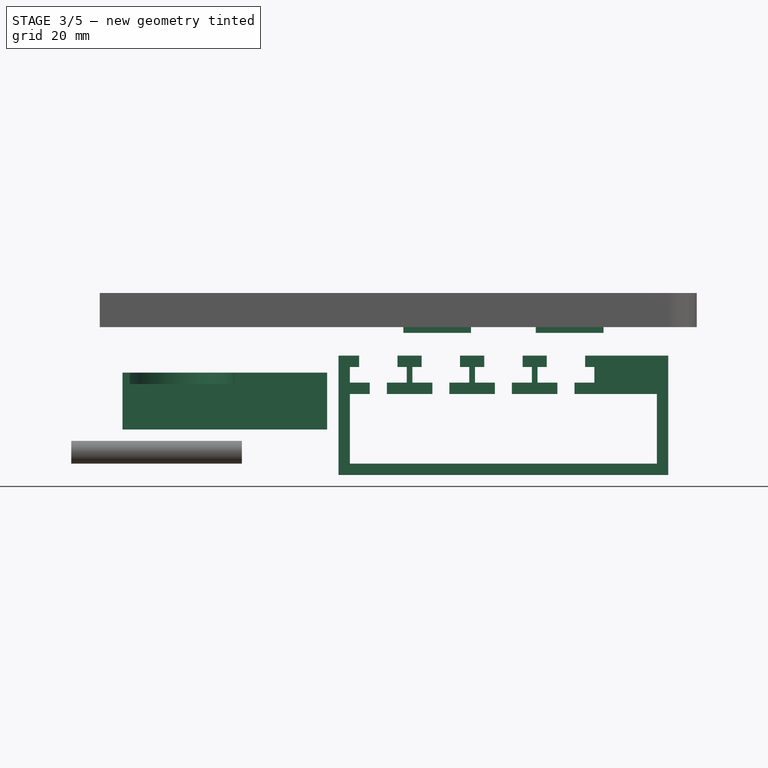
[diagram: stage 3 of 5 — front view after this stage's code; geometry added in this stage tinted green]
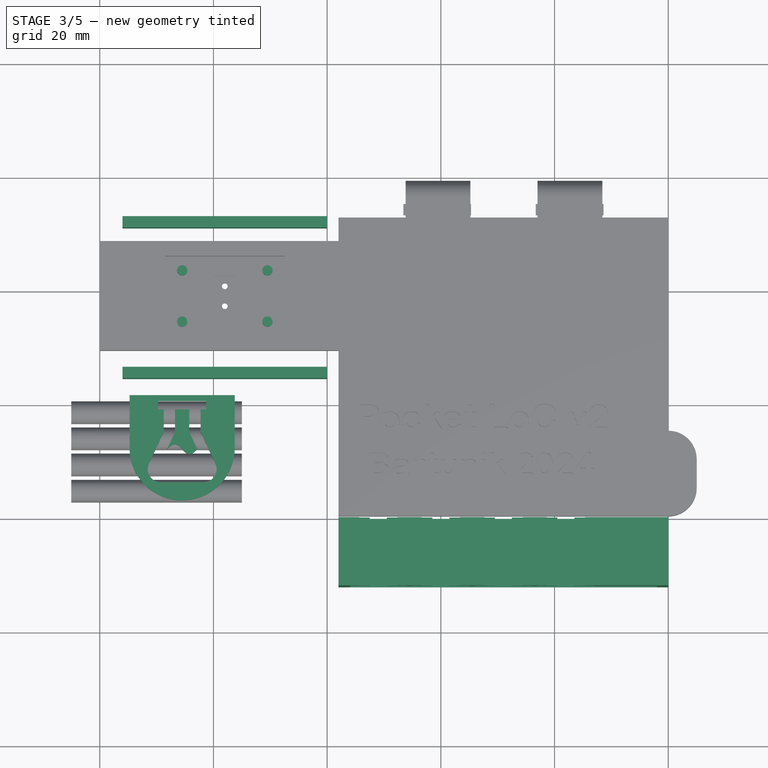
[diagram: stage 3 of 5 — top view after this stage's code; geometry added in this stage tinted green]
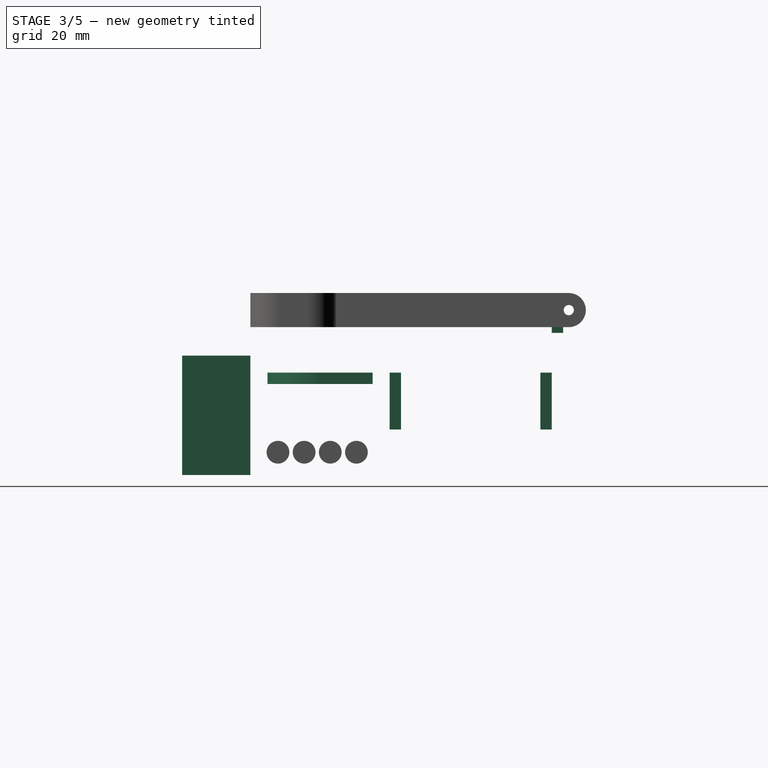
[diagram: stage 3 of 5 — right view after this stage's code; geometry added in this stage tinted green]
FEATURE [Sketcher::SketchObject] Sketch  label="ground_plane"
  FullyConstrained = true
  expr: Constraints[8] = <<params>>.box_length
  expr: Constraints[9] = <<params>>.box_width
  sketch-geometry (4):
    g0: LineSegment StartX=-4e-16 StartY=55 StartZ=0 EndX=100 EndY=55 EndZ=0
    g1: LineSegment StartX=100 StartY=55 StartZ=0 EndX=100 EndY=0 EndZ=0
    g2: LineSegment StartX=100 StartY=0 StartZ=0 EndX=0 EndY=0 EndZ=0
    g3: LineSegment StartX=-4e-16 StartY=0 StartZ=0 EndX=-4e-16 EndY=55 EndZ=0
  constraints (11):
    c: Coincident(g0,g1)
    c: Coincident(g1,g2)
    c: Coincident(g2,g3)
    c: Coincident(g3,g0)
    c: Horizontal(g0)
    c: Horizontal(g2)
    c: Vertical(g1)
    c: Vertical(g3)
    c: DistanceX(g0,g0) = 100
    c: DistanceY(g1,g1) = 55
    c: Coincident(g2,g-1)
FEATURE [Spreadsheet::Sheet] Spreadsheet  label="params"
  cells = A2=microfluidic chip width [mm]; B2=25; D2=measurement width [mm]; E2(measurement_width)==(B2 - B3) * 2; A3=unused edge of microfluidic chip [mm]; B3=5; A5=box length [mm]; B5(box_length)=100; A6=box width [mm]; B6(box_width)=55; A7=box outer wall strength [mm]; B7(box_wall)=2; A9=pump stack height [mm]; B9(pump_stack_height)=16; D9=box height [mm]; E9(box_height)==B9 + B10; A10=microfluidic chip height [mm]; B10=8; D10=measurement height [mm]; E10(measurement_height)==B9; A12=hinge tolerance [mm]; B12(hinge_tolerance)=0.2; A13=hinge segment size [mm]; B13(hinge_segment_size)==(B5 - E2 - B7) / 5 - B12
FEATURE [Sketcher::SketchObject] Sketch002  label="outer_wall"
  ExternalGeometry = -> [Sketch]
  FullyConstrained = true
  expr: Constraints[37] = <<params>>.box_wall
  expr: Constraints[38] = <<params>>.measurement_width
  sketch-geometry (14):
    g0: LineSegment StartX=-4e-16 StartY=55 StartZ=0 EndX=2 EndY=55 EndZ=0
    g1: LineSegment StartX=2 StartY=55 StartZ=0 EndX=2 EndY=0 EndZ=0
    g2: LineSegment StartX=2 StartY=0 StartZ=0 EndX=-4e-16 EndY=0 EndZ=0
    g3: LineSegment StartX=-4e-16 StartY=0 StartZ=0 EndX=-4e-16 EndY=55 EndZ=0
    g4: LineSegment StartX=42 StartY=55 StartZ=0 EndX=100 EndY=55 EndZ=0
    g5: LineSegment StartX=100 StartY=55 StartZ=0 EndX=100 EndY=0 EndZ=0
    g6: LineSegment StartX=42 StartY=53 StartZ=0 EndX=42 EndY=55 EndZ=0
    g7: LineSegment StartX=42 StartY=0 StartZ=0 EndX=100 EndY=0 EndZ=0
    g8: LineSegment StartX=42 StartY=2 StartZ=0 EndX=42 EndY=0 EndZ=0
    g9: LineSegment StartX=42 StartY=53 StartZ=0 EndX=98 EndY=53 EndZ=0
    g10: LineSegment StartX=98 StartY=53 StartZ=0 EndX=98 EndY=2 EndZ=0
    g11: LineSegment StartX=98 StartY=2 StartZ=0 EndX=42 EndY=2 EndZ=0
    g12: LineSegment StartX=98 StartY=53 StartZ=0 EndX=100 EndY=53 EndZ=0
    g13: LineSegment StartX=42 StartY=53 StartZ=0 EndX=42 EndY=2 EndZ=0
  constraints (39):
    c: Coincident(g0,g1)
    c: Coincident(g1,g2)
    c: Coincident(g2,g3)
    c: Coincident(g3,g0)
    c: Horizontal(g0)
    c: Horizontal(g2)
    c: Vertical(g1)
    c: Vertical(g3)
    c: Coincident(g0,g-6)
    c: PointOnObject(g1,g-5)
    c: Coincident(g4,g5)
    c: Coincident(g6,g4)
    c: Horizontal(g4)
    c: Vertical(g5)
    c: Vertical(g6)
    c: Coincident(g8,g7)
    c: Horizontal(g7)
    c: Vertical(g8)
    c: PointOnObject(g7,g-5)
    c: Coincident(g5,g7)
    c: Coincident(g9,g10)
    c: Coincident(g10,g11)
    c: Horizontal(g9)
    c: Horizontal(g11)
    c: Vertical(g10)
    c: Coincident(g9,g6)
    c: Coincident(g11,g8)
    c: Coincident(g12,g9)
    c: PointOnObject(g12,g5)
    c: Horizontal(g12)
    c: Equal(g12,g0)
    c: Equal(g0,g6)
    c: Equal(g6,g8)
    c: Coincident(g4,g-4)
    c: Coincident(g13,g6)
    c: Coincident(g13,g8)
    c: Vertical(g13)
    c: DistanceX(g12,g12) = 2
    c: DistanceX(g0,g4) = 40
FEATURE [Sketcher::SketchObject] Sketch001  label="measurement_base"
  ExternalGeometry = -> [Sketch,Sketch002]
  FullyConstrained = true
  sketch-geometry (8):
    g0: LineSegment StartX=2 StartY=55 StartZ=0 EndX=42 EndY=55 EndZ=0
    g1: LineSegment StartX=42 StartY=55 StartZ=0 EndX=42 EndY=22.5 EndZ=0
    g2: LineSegment StartX=2 StartY=0 StartZ=0 EndX=2 EndY=55 EndZ=0
    g3: LineSegment StartX=2 StartY=0 StartZ=0 EndX=42 EndY=0 EndZ=0
    g4: LineSegment StartX=42 StartY=22.5 StartZ=0 EndX=27 EndY=22.5 EndZ=0
    g5: LineSegment StartX=42 StartY=0 StartZ=0 EndX=42 EndY=2 EndZ=0
    g6: LineSegment StartX=42 StartY=2 StartZ=0 EndX=27 EndY=2 EndZ=0
    g7: LineSegment StartX=27 StartY=2 StartZ=0 EndX=27 EndY=22.5 EndZ=0
  constraints (19):
    c: Coincident(g0,g1)
    c: Coincident(g2,g0)
    c: Vertical(g1)
    c: Coincident(g0,g-6)
    c: Coincident(g0,g-5)
    c: Coincident(g2,g-6)
    c: Coincident(g3,g2)
    c: Coincident(g4,g1)
    c: Horizontal(g4)
    c: DistanceY(g1,g-5) = 30.5
    c: DistanceX(g4,g4) = 15
    c: Coincident(g5,g-7)
    c: Coincident(g5,g-7)
    c: Coincident(g3,g5)
    c: Coincident(g6,g5)
    c: Horizontal(g6)
    c: Coincident(g7,g6)
    c: Coincident(g7,g4)
    c: Vertical(g7)
FEATURE [Sketcher::SketchObject] Sketch003  label="pump_holder"
  ExternalGeometry = -> [Sketch001,Sketch002]
  FullyConstrained = true
  sketch-geometry (24):
    g0: LineSegment StartX=81 StartY=53 StartZ=0 EndX=83 EndY=53 EndZ=0
    g1: LineSegment StartX=83 StartY=53 StartZ=0 EndX=83 EndY=49 EndZ=0
    g2: LineSegment StartX=83 StartY=49 StartZ=0 EndX=81 EndY=49 EndZ=0
    g3: LineSegment StartX=81 StartY=49 StartZ=0 EndX=81 EndY=53 EndZ=0
    g4: LineSegment StartX=48 StartY=28 StartZ=0 EndX=53 EndY=28 EndZ=0
    g5: LineSegment StartX=53 StartY=28 StartZ=0 EndX=53 EndY=22.5 EndZ=0
    g6: LineSegment StartX=53 StartY=22.5 StartZ=0 EndX=48 EndY=22.5 EndZ=0
    g7: LineSegment StartX=48 StartY=22.5 StartZ=0 EndX=48 EndY=28 EndZ=0
    g8: LineSegment StartX=70 StartY=28 StartZ=0 EndX=75 EndY=28 EndZ=0
    g9: LineSegment StartX=75 StartY=28 StartZ=0 EndX=75 EndY=22.5 EndZ=0
    g10: LineSegment StartX=75 StartY=22.5 StartZ=0 EndX=70 EndY=22.5 EndZ=0
    g11: LineSegment StartX=70 StartY=22.5 StartZ=0 EndX=70 EndY=28 EndZ=0
    g12: LineSegment StartX=48 StartY=2 StartZ=0 EndX=75 EndY=2 EndZ=0
    g13: LineSegment StartX=75 StartY=2 StartZ=0 EndX=75 EndY=6.5 EndZ=0
    g14: LineSegment StartX=75 StartY=6.5 StartZ=0 EndX=48 EndY=6.5 EndZ=0
    g15: LineSegment StartX=48 StartY=6.5 StartZ=0 EndX=48 EndY=2 EndZ=0
    g16: LineSegment StartX=53 StartY=28 StartZ=0 EndX=70 EndY=28 EndZ=0
    g17: LineSegment StartX=48 StartY=6.5 StartZ=0 EndX=48 EndY=22.5 EndZ=0
    g18: LineSegment StartX=75 StartY=6.5 StartZ=0 EndX=75 EndY=22.5 EndZ=0
    g19: LineSegment StartX=81 StartY=49 StartZ=0 EndX=61.5 EndY=49 EndZ=0
    g20: LineSegment StartX=61.5 StartY=49 StartZ=0 EndX=42 EndY=49 EndZ=0
    g21: LineSegment StartX=70 StartY=22.5 StartZ=0 EndX=61.5 EndY=22.5 EndZ=0
    g22: LineSegment StartX=61.5 StartY=22.5 StartZ=0 EndX=53 EndY=22.5 EndZ=0
    g23: LineSegment StartX=61.5 StartY=22.5 StartZ=0 EndX=61.5 EndY=49 EndZ=0
  constraints (67):
    c: Coincident(g0,g1)
    c: Coincident(g1,g2)
    c: Coincident(g2,g3)
    c: Coincident(g3,g0)
    c: Horizontal(g0)
    c: Horizontal(g2)
    c: Vertical(g1)
    c: Vertical(g3)
    c: Coincident(g4,g5)
    c: Coincident(g5,g6)
    c: Coincident(g6,g7)
    c: Coincident(g7,g4)
    c: Horizontal(g4)
    c: Horizontal(g6)
    c: Vertical(g5)
    c: Vertical(g7)
    c: Coincident(g8,g9)
    c: Coincident(g9,g10)
    c: Coincident(g10,g11)
    c: Coincident(g11,g8)
    c: Horizontal(g8)
    c: Horizontal(g10)
    c: Vertical(g9)
    c: Vertical(g11)
    c: Coincident(g12,g13)
    c: Coincident(g13,g14)
    c: Coincident(g14,g15)
    c: Coincident(g15,g12)
    c: Horizontal(g12)
    c: Horizontal(g14)
    c: Vertical(g13)
    c: Vertical(g15)
    c: DistanceX(g0,g0) = 2
    c: DistanceY(g1,g1) = 4
    c: Coincident(g16,g4)
    c: Coincident(g16,g8)
    c: Horizontal(g16)
    c: DistanceY(g8,g0) = 25
    c: Equal(g8,g4)
    c: DistanceX(g8,g8) = 5
    c: DistanceY(g9,g9) = 5.5
    c: PointOnObject(g0,g-4)
    c: DistanceX(g16,g16) = 17
    c: DistanceX(g-4,g0) = 39
    c: DistanceY(g13,g10) = 16
    c: PointOnObject(g12,g-5)
    c: Coincident(g17,g14)
    c: Coincident(g17,g6)
    c: Vertical(g17)
    c: Coincident(g18,g13)
    c: Coincident(g18,g9)
    c: Vertical(g18)
    c: Coincident(g19,g2)
    c: Horizontal(g19)
    c: Coincident(g20,g19)
    c: PointOnObject(g20,g-3)
    c: Horizontal(g20)
    c: Equal(g19,g20)
    c: Coincident(g21,g10)
    c: Horizontal(g21)
    c: Coincident(g22,g21)
    c: Coincident(g22,g5)
    c: Horizontal(g22)
    c: Equal(g22,g21)
    c: Coincident(g23,g21)
    c: Coincident(g23,g19)
    c: Vertical(g23)
FEATURE [Part::Extrusion] Extrude  label="ground_plane_body"
  Base = -> Sketch
  Dir = (0,0,1)
  DirMode = 2
  FaceMakerClass = Part::FaceMakerBullseye
  LengthFwd = 0
  LengthRev = 2
  Solid = true
  Symmetric = false
  expr: LengthRev = <<params>>.box_wall
FEATURE [Sketcher::SketchObject] Sketch004  label="reservoir_plugs"
  ExternalGeometry = -> [Extrude001,Extrude]
  FullyConstrained = true
  MapMode = 5
  Placement = pos=(0,0,0) rot=(1,0,0;1.5708rad)
  Support = -> [Extrude001]
  sketch-geometry (90):
    g0: LineSegment StartX=77 StartY=14.25 StartZ=0 EndX=80.5 EndY=14.25 EndZ=0
    g1: LineSegment StartX=80.5 StartY=14.25 StartZ=0 EndX=80.5 EndY=12.25 EndZ=0
    g2: LineSegment StartX=80.5 StartY=12.25 StartZ=0 EndX=76.5 EndY=12.25 EndZ=0
    g3: LineSegment StartX=83.5 StartY=14.25 StartZ=0 EndX=87 EndY=14.25 EndZ=0
    g4: LineSegment StartX=83.5 StartY=12.25 StartZ=0 EndX=83.5 EndY=14.25 EndZ=0
    g5: LineSegment StartX=85.375 StartY=19 StartZ=0 EndX=100 EndY=19 EndZ=0
    g6: LineSegment StartX=100 StartY=19 StartZ=0 EndX=100 EndY=12.25 EndZ=0
    g7: LineSegment StartX=85.375 StartY=17 StartZ=0 EndX=85.375 EndY=19 EndZ=0
    g8: LineSegment StartX=76.5 StartY=19 StartZ=0 EndX=78.625 EndY=19 EndZ=0
    g9: LineSegment StartX=78.625 StartY=19 StartZ=0 EndX=78.625 EndY=17 EndZ=0
    g10: LineSegment StartX=76.5 StartY=12.25 StartZ=0 EndX=76.5 EndY=19 EndZ=0
    g11: LineSegment StartX=85.375 StartY=17 StartZ=0 EndX=87 EndY=17 EndZ=0
    g12: LineSegment StartX=87 StartY=17 StartZ=0 EndX=87 EndY=14.25 EndZ=0
    g13: LineSegment StartX=78.625 StartY=17 StartZ=0 EndX=77 EndY=17 EndZ=0
    g14: LineSegment StartX=77 StartY=17 StartZ=0 EndX=77 EndY=14.25 EndZ=0
    g15: LineSegment StartX=85.375 StartY=19 StartZ=0 EndX=78.625 EndY=19 EndZ=0
    g16: LineSegment StartX=85.375 StartY=17 StartZ=0 EndX=78.625 EndY=17 EndZ=0
    g17: LineSegment StartX=83.5 StartY=14.25 StartZ=0 EndX=80.5 EndY=14.25 EndZ=0
    g18: LineSegment StartX=83.5 StartY=12.25 StartZ=0 EndX=80.5 EndY=12.25 EndZ=0
    g19: LineSegment StartX=66 StartY=14.25 StartZ=0 EndX=69.5 EndY=14.25 EndZ=0
    g20: LineSegment StartX=69.5 StartY=14.25 StartZ=0 EndX=69.5 EndY=12.25 EndZ=0
    g21: LineSegment StartX=69.5 StartY=12.25 StartZ=0 EndX=65.5 EndY=12.25 EndZ=0
    g22: LineSegment StartX=72.5 StartY=14.25 StartZ=0 EndX=76 EndY=14.25 EndZ=0
    g23: LineSegment StartX=76.5 StartY=12.25 StartZ=0 EndX=72.5 EndY=12.25 EndZ=0
    g24: LineSegment StartX=72.5 StartY=12.25 StartZ=0 EndX=72.5 EndY=14.25 EndZ=0
    g25: LineSegment StartX=74.375 StartY=19 StartZ=0 EndX=76.5 EndY=19 EndZ=0
    g26: LineSegment StartX=76.5 StartY=19 StartZ=0 EndX=76.5 EndY=12.25 EndZ=0
    g27: LineSegment StartX=74.375 StartY=17 StartZ=0 EndX=74.375 EndY=19 EndZ=0
    g28: LineSegment StartX=65.5 StartY=19 StartZ=0 EndX=67.625 EndY=19 EndZ=0
    g29: LineSegment StartX=67.625 StartY=19 StartZ=0 EndX=67.625 EndY=17 EndZ=0
    g30: LineSegment StartX=65.5 StartY=12.25 StartZ=0 EndX=65.5 EndY=19 EndZ=0
    g31: LineSegment StartX=74.375 StartY=17 StartZ=0 EndX=76 EndY=17 EndZ=0
    g32: LineSegment StartX=76 StartY=17 StartZ=0 EndX=76 EndY=14.25 EndZ=0
    g33: LineSegment StartX=67.625 StartY=17 StartZ=0 EndX=66 EndY=17 EndZ=0
    g34: LineSegment StartX=66 StartY=17 StartZ=0 EndX=66 EndY=14.25 EndZ=0
    g35: LineSegment StartX=74.375 StartY=19 StartZ=0 EndX=67.625 EndY=19 EndZ=0
    g36: LineSegment StartX=74.375 StartY=17 StartZ=0 EndX=67.625 EndY=17 EndZ=0
    g37: LineSegment StartX=72.5 StartY=14.25 StartZ=0 EndX=69.5 EndY=14.25 EndZ=0
    g38: LineSegment StartX=72.5 StartY=12.25 StartZ=0 EndX=69.5 EndY=12.25 EndZ=0
    g39: LineSegment StartX=55 StartY=14.25 StartZ=0 EndX=58.5 EndY=14.25 EndZ=0
    g40: LineSegment StartX=58.5 StartY=14.25 StartZ=0 EndX=58.5 EndY=12.25 EndZ=0
    g41: LineSegment StartX=58.5 StartY=12.25 StartZ=0 EndX=54.5 EndY=12.25 EndZ=0
    g42: LineSegment StartX=61.5 StartY=14.25 StartZ=0 EndX=65 EndY=14.25 EndZ=0
    g43: LineSegment StartX=65.5 StartY=12.25 StartZ=0 EndX=61.5 EndY=12.25 EndZ=0
    g44: LineSegment StartX=61.5 StartY=12.25 StartZ=0 EndX=61.5 EndY=14.25 EndZ=0
    g45: LineSegment StartX=63.375 StartY=19 StartZ=0 EndX=65.5 EndY=19 EndZ=0
    g46: LineSegment StartX=65.5 StartY=19 StartZ=0 EndX=65.5 EndY=12.25 EndZ=0
    g47: LineSegment StartX=63.375 StartY=17 StartZ=0 EndX=63.375 EndY=19 EndZ=0
    g48: LineSegment StartX=54.5 StartY=19 StartZ=0 EndX=56.625 EndY=19 EndZ=0
    g49: LineSegment StartX=56.625 StartY=19 StartZ=0 EndX=56.625 EndY=17 EndZ=0
    g50: LineSegment StartX=54.5 StartY=12.25 StartZ=0 EndX=54.5 EndY=19 EndZ=0
    g51: LineSegment StartX=63.375 StartY=17 StartZ=0 EndX=65 EndY=17 EndZ=0
    g52: LineSegment StartX=65 StartY=17 StartZ=0 EndX=65 EndY=14.25 EndZ=0
    g53: LineSegment StartX=56.625 StartY=17 StartZ=0 EndX=55 EndY=17 EndZ=0
    g54: LineSegment StartX=55 StartY=17 StartZ=0 EndX=55 EndY=14.25 EndZ=0
    g55: LineSegment StartX=63.375 StartY=19 StartZ=0 EndX=56.625 EndY=19 EndZ=0
    g56: LineSegment StartX=63.375 StartY=17 StartZ=0 EndX=56.625 EndY=17 EndZ=0
    g57: LineSegment StartX=61.5 StartY=14.25 StartZ=0 EndX=58.5 EndY=14.25 EndZ=0
    g58: LineSegment StartX=61.5 StartY=12.25 StartZ=0 EndX=58.5 EndY=12.25 EndZ=0
    g59: LineSegment StartX=44 StartY=14.25 StartZ=0 EndX=47.5 EndY=14.25 EndZ=0
    g60: LineSegment StartX=47.5 StartY=14.25 StartZ=0 EndX=47.5 EndY=12.25 EndZ=0
    g61: LineSegment StartX=50.5 StartY=14.25 StartZ=0 EndX=54 EndY=14.25 EndZ=0
    g62: LineSegment StartX=54.5 StartY=12.25 StartZ=0 EndX=50.5 EndY=12.25 EndZ=0
    g63: LineSegment StartX=50.5 StartY=12.25 StartZ=0 EndX=50.5 EndY=14.25 EndZ=0
    g64: LineSegment StartX=52.375 StartY=19 StartZ=0 EndX=54.5 EndY=19 EndZ=0
    g65: LineSegment StartX=54.5 StartY=19 StartZ=0 EndX=54.5 EndY=12.25 EndZ=0
    g66: LineSegment StartX=52.375 StartY=17 StartZ=0 EndX=52.375 EndY=19 EndZ=0
    g67: LineSegment StartX=42 StartY=19 StartZ=0 EndX=45.625 EndY=19 EndZ=0
    g68: LineSegment StartX=45.625 StartY=19 StartZ=0 EndX=45.625 EndY=17 EndZ=0
    g69: LineSegment StartX=42 StartY=12.25 StartZ=0 EndX=42 EndY=19 EndZ=0
    g70: LineSegment StartX=52.375 StartY=17 StartZ=0 EndX=54 EndY=17 EndZ=0
    g71: LineSegment StartX=54 StartY=17 StartZ=0 EndX=54 EndY=14.25 EndZ=0
    g72: LineSegment StartX=45.625 StartY=17 StartZ=0 EndX=44 EndY=17 EndZ=0
    g73: LineSegment StartX=44 StartY=17 StartZ=0 EndX=44 EndY=14.25 EndZ=0
    g74: LineSegment StartX=52.375 StartY=19 StartZ=0 EndX=45.625 EndY=19 EndZ=0
    g75: LineSegment StartX=52.375 StartY=17 StartZ=0 EndX=45.625 EndY=17 EndZ=0
    g76: LineSegment StartX=50.5 StartY=14.25 StartZ=0 EndX=47.5 EndY=14.25 EndZ=0
    g77: LineSegment StartX=50.5 StartY=12.25 StartZ=0 EndX=47.5 EndY=12.25 EndZ=0
    g78: LineSegment StartX=100 StartY=12.25 StartZ=0 EndX=100 EndY=-2 EndZ=0
    g79: LineSegment StartX=100 StartY=-2 StartZ=0 EndX=42 EndY=-2 EndZ=0
    g80: LineSegment StartX=98 StartY=12.25 StartZ=0 EndX=98 EndY=0 EndZ=0
    g81: LineSegment StartX=98 StartY=0 StartZ=0 EndX=44 EndY=0 EndZ=0
    g82: LineSegment StartX=44 StartY=0 StartZ=0 EndX=44 EndY=12.25 EndZ=0
    g83: LineSegment StartX=42 StartY=-2 StartZ=0 EndX=42 EndY=12.25 EndZ=0
    g84: LineSegment StartX=100 StartY=0 StartZ=0 EndX=98 EndY=0 EndZ=0
    g85: LineSegment StartX=42 StartY=0 StartZ=0 EndX=44 EndY=0 EndZ=0
    g86: LineSegment StartX=47.5 StartY=12.25 StartZ=0 EndX=44 EndY=12.25 EndZ=0
    g87: LineSegment StartX=98 StartY=12.25 StartZ=0 EndX=83.5 EndY=12.25 EndZ=0
    g88: LineSegment StartX=44 StartY=12.25 StartZ=0 EndX=42 EndY=12.25 EndZ=0
    g89: LineSegment StartX=98 StartY=12.25 StartZ=0 EndX=100 EndY=12.25 EndZ=0
  constraints (246):
    c: Coincident(g0,g1)
    c: Coincident(g1,g2)
    c: Horizontal(g0)
    c: Horizontal(g2)
    c: Vertical(g1)
    c: Coincident(g4,g3)
    c: Horizontal(g3)
    c: Vertical(g4)
    c: Coincident(g5,g6)
    c: Coincident(g7,g5)
    c: Horizontal(g5)
    c: Vertical(g6)
    c: Vertical(g7)
    c: Coincident(g8,g9)
    c: Coincident(g10,g8)
    c: Horizontal(g8)
    c: Vertical(g9)
    c: Vertical(g10)
    c: Coincident(g11,g7)
    c: Horizontal(g11)
    c: Coincident(g12,g11)
    c: Coincident(g12,g3)
    c: Vertical(g12)
    c: DistanceY(g12,g12) = 2.75  'block_height'
    c: Coincident(g2,g10)
    c: Coincident(g13,g9)
    c: Horizontal(g13)
    c: Coincident(g14,g13)
    c: Coincident(g14,g0)
    c: Vertical(g14)
    c: Coincident(g15,g5)
    c: Coincident(g15,g8)
    c: Coincident(g16,g7)
    c: Coincident(g16,g9)
    c: Coincident(g17,g3)
    c: Coincident(g17,g0)
    c: Horizontal(g17)
    c: Horizontal(g16)
    c: Horizontal(g15)
    c: Coincident(g18,g1)
    c: Horizontal(g18)
    c: Equal(g3,g0)
    c: Equal(g13,g11)
    c: DistanceX(g13,g11) = 10
    c: DistanceX(g15,g15) = 6.75
    c: DistanceX(g17,g17) = 3
    c: Equal(g7,g4)
    c: DistanceY(g7,g7) = 2
    c: Coincident(g19,g20)
    c: Coincident(g20,g21)
    c: Horizontal(g19)
    c: Horizontal(g21)
    c: Vertical(g20)
    c: Coincident(g23,g24)
    c: Coincident(g24,g22)
    c: Horizontal(g22)
    c: Horizontal(g23)
    c: Vertical(g24)
    c: Coincident(g25,g26)
    c: Coincident(g27,g25)
    c: Horizontal(g25)
    c: Vertical(g26)
    c: Vertical(g27)
    c: Coincident(g28,g29)
    c: Coincident(g30,g28)
    c: Horizontal(g28)
    c: Vertical(g29)
    c: Vertical(g30)
    c: Coincident(g26,g23)
    c: Coincident(g31,g27)
    c: Horizontal(g31)
    c: Coincident(g32,g31)
    c: Coincident(g32,g22)
    c: Vertical(g32)
    c: Equal(g12,g32) = 3
    c: Coincident(g21,g30)
    c: Coincident(g33,g29)
    c: Horizontal(g33)
    c: Coincident(g34,g33)
    c: Coincident(g34,g19)
    c: Vertical(g34)
    c: Coincident(g35,g25)
    c: Coincident(g35,g28)
    c: Coincident(g36,g27)
    c: Coincident(g36,g29)
    c: Coincident(g37,g22)
    c: Coincident(g37,g19)
    c: Horizontal(g37)
    c: Horizontal(g36)
    c: Horizontal(g35)
    c: Coincident(g38,g23)
    c: Coincident(g38,g20)
    c: Horizontal(g38)
    c: Equal(g22,g19)
    c: Equal(g33,g31)
    c: DistanceX(g33,g31) = 10
    c: Equal(g15,g35) = 7.5
    c: Equal(g17,g37) = 4
    c: Equal(g27,g24)
    c: Equal(g7,g27) = 2
    c: Coincident(g23,g2)
    c: Equal(g8,g25)
    c: Coincident(g39,g40)
    c: Coincident(g40,g41)
    c: Horizontal(g39)
    c: Horizontal(g41)
    c: Vertical(g40)
    c: Coincident(g43,g44)
    c: Coincident(g44,g42)
    c: Horizontal(g42)
    c: Horizontal(g43)
    c: Vertical(g44)
    c: Coincident(g45,g46)
    c: Coincident(g47,g45)
    c: Horizontal(g45)
    c: Vertical(g46)
    c: Vertical(g47)
    c: Coincident(g48,g49)
    c: Coincident(g50,g48)
    c: Horizontal(g48)
    c: Vertical(g49)
    c: Vertical(g50)
    c: Coincident(g46,g43)
    c: Coincident(g51,g47)
    c: Horizontal(g51)
    c: Coincident(g52,g51)
    c: Coincident(g52,g42)
    c: Vertical(g52)
    c: Equal(g12,g52) = 3
    c: Coincident(g41,g50)
    c: Coincident(g53,g49)
    c: Horizontal(g53)
    c: Coincident(g54,g53)
    c: Coincident(g54,g39)
    c: Vertical(g54)
    c: Coincident(g55,g45)
    c: Coincident(g55,g48)
    c: Coincident(g56,g47)
    c: Coincident(g56,g49)
    c: Coincident(g57,g42)
    c: Coincident(g57,g39)
    c: Horizontal(g57)
    c: Horizontal(g56)
    c: Horizontal(g55)
    c: Coincident(g58,g43)
    c: Coincident(g58,g40)
    c: Horizontal(g58)
    c: Equal(g42,g39)
    c: Equal(g53,g51)
    c: DistanceX(g53,g51) = 10
    c: Equal(g15,g55) = 7.5
    c: Equal(g17,g57) = 4
    c: Equal(g47,g44)
    c: Equal(g7,g47) = 2
    c: Coincident(g59,g60)
    c: Horizontal(g59)
    c: Vertical(g60)
    c: Coincident(g62,g63)
    c: Coincident(g63,g61)
    c: Horizontal(g61)
    c: Horizontal(g62)
    c: Vertical(g63)
    c: Coincident(g64,g65)
    c: Coincident(g66,g64)
    c: Horizontal(g64)
    c: Vertical(g65)
    c: Vertical(g66)
    c: Coincident(g67,g68)
    c: Coincident(g69,g67)
    c: Horizontal(g67)
    c: Vertical(g68)
    c: Vertical(g69)
    c: Coincident(g65,g62)
    c: Coincident(g70,g66)
    c: Horizontal(g70)
    c: Coincident(g71,g70)
    c: Coincident(g71,g61)
    c: Vertical(g71)
    c: Equal(g52,g71) = 3
    c: Coincident(g72,g68)
    c: Horizontal(g72)
    c: Coincident(g73,g72)
    c: Coincident(g73,g59)
    c: Vertical(g73)
    c: Coincident(g74,g64)
    c: Coincident(g74,g67)
    c: Coincident(g75,g66)
    c: Coincident(g75,g68)
    c: Coincident(g76,g61)
    c: Coincident(g76,g59)
    c: Horizontal(g76)
    c: Horizontal(g75)
    c: Horizontal(g74)
    c: Coincident(g77,g62)
    c: Coincident(g77,g60)
    c: Horizontal(g77)
    c: Equal(g61,g59)
    c: Equal(g72,g70)
    c: DistanceX(g72,g70) = 10
    c: Equal(g55,g74) = 7.5
    c: Equal(g57,g76) = 4
    c: Equal(g66,g63)
    c: Equal(g47,g66) = 2
    c: Coincident(g62,g41)
    c: Equal(g48,g64)
    c: Equal(g25,g64) = 1
    c: DistanceX(g51,g45) = 0.5
    c: Coincident(g43,g21)
    c: Equal(g45,g28)
    c: DistanceX(g31,g8) = 0.5
    c: DistanceY(g67,g-3) = 5
    c: PointOnObject(g5,g-4)
    c: PointOnObject(g67,g-5)
    c: Coincident(g78,g79)
    c: Horizontal(g79)
    c: Coincident(g78,g-6)
    c: Coincident(g81,g80)
    c: Horizontal(g81)
    c: Coincident(g82,g81)
    c: Vertical(g82)
    c: Coincident(g83,g79)
    c: Vertical(g83)
    c: Vertical(g80)
    c: Coincident(g84,g-4)
    c: Coincident(g84,g80)
    c: Coincident(g85,g-5)
    c: Coincident(g85,g81)
    c: Horizontal(g85)
    c: Equal(g84,g85)
    c: DistanceX(g84,g84) = 2
    c: Coincident(g86,g60)
    c: Coincident(g86,g82)
    c: Horizontal(g86)
    c: Coincident(g87,g80)
    c: Coincident(g87,g4)
    c: Horizontal(g87)
    c: Coincident(g69,g83)
    c: Coincident(g6,g78)
    c: Coincident(g88,g82)
    c: Coincident(g88,g69)
    c: Horizontal(g88)
    c: Coincident(g89,g80)
    c: Coincident(g89,g6)
    c: Horizontal(g89)
    c: Coincident(g4,g18)
    c: DistanceX(g67,g72) = 2
FEATURE [Part::Extrusion] Extrude004  label="reservoir_plugs_body"
  Base = -> Sketch004
  Dir = (0,-1,2e-16)
  DirMode = 2
  FaceMakerClass = Part::FaceMakerBullseye
  LengthFwd = 12
  LengthRev = 0
  Solid = true
  Symmetric = false
FEATURE [Sketcher::SketchObject] Sketch011  label="base_hinge"
  ExternalGeometry = -> [Extrude001]
  FullyConstrained = true
  MapMode = 5
  Placement = pos=(100,0,0) rot=(0.57735,0.57735,0.57735;2.0944rad)
  Support = -> [Extrude001]
  expr: Constraints[21] = <<params>>.box_wall
  sketch-geometry (9):
    g0: Circle CenterX=56 CenterY=27 CenterZ=0 NormalX=0 NormalY=0 NormalZ=1 AngleXU=0 Radius=1
    g1: ArcOfCircle CenterX=56 CenterY=27 CenterZ=0 NormalX=0 NormalY=0 NormalZ=1 AngleXU=0 Radius=3 StartAngle=1.5708 EndAngle=3.14159
    g2: LineSegment StartX=56 StartY=30 StartZ=0 EndX=59 EndY=30 EndZ=0
    g3: LineSegment StartX=59 StartY=30 StartZ=0 EndX=59 EndY=-2 EndZ=0
    g4: LineSegment StartX=53 StartY=24 StartZ=0 EndX=53 EndY=27 EndZ=0
    g5: LineSegment StartX=53 StartY=24 StartZ=0 EndX=55 EndY=24 EndZ=0
    g6: LineSegment StartX=55 StartY=24 StartZ=0 EndX=55 EndY=-2 EndZ=0
    g7: LineSegment StartX=56 StartY=28 StartZ=0 EndX=56 EndY=30 EndZ=0
    g8: LineSegment StartX=55 StartY=-2 StartZ=0 EndX=59 EndY=-2 EndZ=0
  constraints (22):
    c: Coincident(g1,g0)
    c: Horizontal(g2)
    c: Coincident(g3,g2)
    c: Vertical(g3)
    c: Coincident(g4,g-5)
    c: Vertical(g4)
    c: Coincident(g5,g4)
    c: Coincident(g6,g5)
    c: Tangent(g4,g1) = 1.5708
    c: Tangent(g2,g1) = 1.5708
    c: Symmetric(g4,g2,g0)
    c: Diameter(g0) = 2
    c: PointOnObject(g7,g0)
    c: Coincident(g7,g1)
    c: Vertical(g7)
    c: DistanceY(g7,g7) = 2
    c: Coincident(g8,g6)
    c: Coincident(g8,g3)
    c: Horizontal(g8)
    c: Coincident(g5,g-4)
    c: Vertical(g6)
    c: DistanceY(g6,g-3) = 2
FEATURE [Part::Extrusion] Extrude011  label="base_hinge_body"
  Base = -> Sketch011
  Dir = (1,0,0)
  DirMode = 2
  FaceMakerClass = Part::FaceMakerBullseye
  LengthFwd = 0
  LengthRev = 11.4
  Solid = true
  Symmetric = false
  expr: LengthRev = <<params>>.hinge_segment_size
FEATURE [Sketcher::SketchObject] Sketch021  label="fcc_studs"
  ExternalGeometry = -> [Sketch020]
  FullyConstrained = true
  MapMode = 5
  Placement = pos=(0,0,24) rot=(1,0,0;3.14159rad)
  Support = -> [Extrude020]
  sketch-geometry (11):
    g0: LineSegment StartX=48.8787 StartY=-35.25 StartZ=0 EndX=41.8787 EndY=-42.25 EndZ=0
    g1: LineSegment StartX=41.8787 StartY=-42.25 StartZ=0 EndX=44 EndY=-42.25 EndZ=0
    g2: LineSegment StartX=48.8787 StartY=-35.25 StartZ=0 EndX=51 EndY=-35.25 EndZ=0
    g3: LineSegment StartX=44 StartY=-46.5 StartZ=0 EndX=51 EndY=-46.5 EndZ=0
    g4: LineSegment StartX=51 StartY=-46.5 StartZ=0 EndX=51 EndY=-49.5 EndZ=0
    g5: LineSegment StartX=51 StartY=-49.5 StartZ=0 EndX=44 EndY=-49.5 EndZ=0
    g6: LineSegment StartX=44 StartY=-49.5 StartZ=0 EndX=44 EndY=-46.5 EndZ=0
    g7: LineSegment StartX=51 StartY=-35.25 StartZ=0 EndX=51 EndY=-37.3713 EndZ=0
    g8: LineSegment StartX=44 StartY=-42.25 StartZ=0 EndX=44 EndY=-44.3713 EndZ=0
    g9: LineSegment StartX=44 StartY=-44.3713 StartZ=0 EndX=51 EndY=-37.3713 EndZ=0
    g10: LineSegment StartX=48.8787 StartY=-35.25 StartZ=0 EndX=51 EndY=-37.3713 EndZ=0
  constraints (30):
    c: PointOnObject(g0,g-3)
    c: PointOnObject(g0,g-6)
    c: Coincident(g1,g0)
    c: Coincident(g1,g-6)
    c: Coincident(g2,g0)
    c: Coincident(g2,g-4)
    c: Equal(g2,g1)
    c: Coincident(g3,g4)
    c: Coincident(g4,g5)
    c: Coincident(g5,g6)
    c: Coincident(g6,g3)
    c: Horizontal(g3)
    c: Horizontal(g5)
    c: Vertical(g4)
    c: Vertical(g6)
    c: PointOnObject(g3,g-5)
    c: PointOnObject(g4,g-4)
    c: DistanceY(g-4,g4) = 2
    c: Coincident(g7,g2)
    c: Coincident(g8,g1)
    c: Coincident(g9,g8)
    c: Coincident(g9,g7)
    c: Equal(g9,g0)
    c: Equal(g1,g8)
    c: Coincident(g10,g0)
    c: Coincident(g10,g7)
    c: DistanceY(g4,g4) = 3
    c: PointOnObject(g8,g-5)
    c: PointOnObject(g7,g-4)
    c: Equal(g10,g4)
FEATURE [Part::Extrusion] Extrude021  label="fcc_studs_body"
  Base = -> Sketch021
  Dir = (0,0,-1)
  DirMode = 2
  FaceMakerClass = Part::FaceMakerBullseye
  LengthFwd = 0
  LengthRev = 2
  Solid = true
  Symmetric = false
FEATURE [Sketcher::SketchObject] Sketch022  label="led_board_studs"
  ExternalGeometry = -> [Sketch013]
  FullyConstrained = true
  MapMode = 5
  Placement = pos=(0,0,26) rot=(1,0,0;3.14159rad)
  Support = -> [Extrude013]
  sketch-geometry (9):
    g0: Circle CenterX=29.5 CenterY=-34.25 CenterZ=0 NormalX=0 NormalY=0 NormalZ=1 AngleXU=0 Radius=0.9
    g1: Circle CenterX=14.5 CenterY=-34.25 CenterZ=0 NormalX=0 NormalY=0 NormalZ=1 AngleXU=0 Radius=0.9
    g2: Circle CenterX=14.5 CenterY=-43.25 CenterZ=0 NormalX=0 NormalY=0 NormalZ=1 AngleXU=0 Radius=0.9
    g3: Circle CenterX=29.5 CenterY=-43.25 CenterZ=0 NormalX=0 NormalY=0 NormalZ=1 AngleXU=0 Radius=0.9
    g4: LineSegment StartX=14.5 StartY=-34.25 StartZ=0 EndX=29.5 EndY=-34.25 EndZ=0
    g5: LineSegment StartX=29.5 StartY=-34.25 StartZ=0 EndX=29.5 EndY=-43.25 EndZ=0
    g6: LineSegment StartX=29.5 StartY=-43.25 StartZ=0 EndX=14.5 EndY=-43.25 EndZ=0
    g7: LineSegment StartX=14.5 StartY=-43.25 StartZ=0 EndX=14.5 EndY=-34.25 EndZ=0
    g8: GeomPoint X=22 Y=-38.75 Z=0
  constraints (20):
    c: Coincident(g4,g5)
    c: Coincident(g5,g6)
    c: Coincident(g6,g7)
    c: Coincident(g7,g4)
    c: Horizontal(g4)
    c: Horizontal(g6)
    c: Vertical(g5)
    c: Vertical(g7)
    c: Coincident(g4,g1)
    c: Coincident(g5,g3)
    c: Coincident(g4,g0)
    c: Coincident(g2,g6)
    c: Equal(g2,g1)
    c: Equal(g1,g0)
    c: Equal(g0,g3)
    c: Diameter(g1) = 1.8
    c: DistanceY(g7,g7) = 9
    c: DistanceX(g4,g4) = 15
    c: Symmetric(g1,g3,g8)
    c: Symmetric(g-3,g-4,g8)
FEATURE [Part::Extrusion] Extrude022  label="led_board_studs_body"
  Base = -> Sketch022
  Dir = (0,0,-1)
  DirMode = 2
  FaceMakerClass = Part::FaceMakerBullseye
  LengthFwd = 0
  LengthRev = 2
  Solid = true
  Symmetric = false
FEATURE [Sketcher::SketchObject] Sketch024  label="position_slits"
  ExternalGeometry = -> [Sketch001]
  FullyConstrained = true
  MapMode = 5
  Placement = pos=(0,0,16) rot=(0,0,1;0rad)
  Support = -> [Extrude002]
  sketch-geometry (10):
    g0: LineSegment StartX=4 StartY=26.5 StartZ=0 EndX=40 EndY=26.5 EndZ=0
    g1: LineSegment StartX=40 StartY=26.5 StartZ=0 EndX=40 EndY=24.5 EndZ=0
    g2: LineSegment StartX=40 StartY=24.5 StartZ=0 EndX=4 EndY=24.5 EndZ=0
    g3: LineSegment StartX=4 StartY=24.5 StartZ=0 EndX=4 EndY=26.5 EndZ=0
    g4: LineSegment StartX=4 StartY=53 StartZ=0 EndX=40 EndY=53 EndZ=0
    g5: LineSegment StartX=40 StartY=53 StartZ=0 EndX=40 EndY=51 EndZ=0
    g6: LineSegment StartX=40 StartY=51 StartZ=0 EndX=4 EndY=51 EndZ=0
    g7: LineSegment StartX=4 StartY=51 StartZ=0 EndX=4 EndY=53 EndZ=0
    g8: LineSegment StartX=4 StartY=51 StartZ=0 EndX=4 EndY=26.5 EndZ=0
    g9: LineSegment StartX=40 StartY=51 StartZ=0 EndX=40 EndY=26.5 EndZ=0
  constraints (28):
    c: Coincident(g0,g1)
    c: Coincident(g1,g2)
    c: Coincident(g2,g3)
    c: Coincident(g3,g0)
    c: Horizontal(g0)
    c: Horizontal(g2)
    c: Vertical(g1)
    c: Vertical(g3)
    c: Coincident(g4,g5)
    c: Coincident(g5,g6)
    c: Coincident(g6,g7)
    c: Coincident(g7,g4)
    c: Horizontal(g4)
    c: Horizontal(g6)
    c: Vertical(g5)
    c: Vertical(g7)
    c: Equal(g7,g3)
    c: Coincident(g8,g6)
    c: Coincident(g8,g0)
    c: Coincident(g9,g5)
    c: Coincident(g9,g0)
    c: Vertical(g9)
    c: Vertical(g8)
    c: DistanceX(g-4,g4) = 2
    c: DistanceY(g4,g-4) = 2
    c: DistanceY(g-3,g1) = 2
    c: DistanceX(g4,g-3) = 2
    c: DistanceY(g5,g5) = 2
FEATURE [Part::Extrusion] Extrude026  label="position_slits_body"
  Base = -> Sketch024
  Dir = (0,0,1)
  DirMode = 2
  FaceMakerClass = Part::FaceMakerBullseye
  LengthFwd = 0
  LengthRev = 10
  Solid = true
  Symmetric = false
FEATURE [Sketcher::SketchObject] Sketch028  label="hinge_gap"
  ExternalGeometry = -> [Extrude001,Extrude011]
  FullyConstrained = true
  MapMode = 5
  Placement = pos=(0,55,0) rot=(0,0.707107,0.707107;3.14159rad)
  Support = -> [Extrude001]
  sketch-geometry (19):
    g0: LineSegment StartX=-76.7 StartY=30 StartZ=0 EndX=-65.3 EndY=30 EndZ=0
    g1: LineSegment StartX=-53.4 StartY=30 StartZ=0 EndX=-42 EndY=30 EndZ=0
    g2: LineSegment StartX=-42 StartY=24 StartZ=0 EndX=-42 EndY=30 EndZ=0
    g3: LineSegment StartX=-100 StartY=30 StartZ=0 EndX=-100 EndY=24 EndZ=0
    g4: LineSegment StartX=-88.6 StartY=30 StartZ=0 EndX=-76.7 EndY=30 EndZ=0
    g5: LineSegment StartX=-65.3 StartY=30 StartZ=0 EndX=-53.4 EndY=30 EndZ=0
    g6: LineSegment StartX=-88.6 StartY=24 StartZ=0 EndX=-76.7 EndY=24 EndZ=0
    g7: LineSegment StartX=-76.7 StartY=24 StartZ=0 EndX=-76.7 EndY=23 EndZ=0
    g8: LineSegment StartX=-76.7 StartY=23 StartZ=0 EndX=-88.6 EndY=23 EndZ=0
    g9: LineSegment StartX=-88.6 StartY=23 StartZ=0 EndX=-88.6 EndY=24 EndZ=0
    g10: LineSegment StartX=-65.3 StartY=24 StartZ=0 EndX=-53.4 EndY=24 EndZ=0
    g11: LineSegment StartX=-53.4 StartY=24 StartZ=0 EndX=-53.4 EndY=23 EndZ=0
    g12: LineSegment StartX=-53.4 StartY=23 StartZ=0 EndX=-65.3 EndY=23 EndZ=0
    g13: LineSegment StartX=-65.3 StartY=23 StartZ=0 EndX=-65.3 EndY=24 EndZ=0
    g14: LineSegment StartX=-88.6 StartY=30 StartZ=0 EndX=-88.6 EndY=24 EndZ=0
    g15: LineSegment StartX=-76.7 StartY=30 StartZ=0 EndX=-76.7 EndY=24 EndZ=0
    g16: LineSegment StartX=-65.3 StartY=30 StartZ=0 EndX=-65.3 EndY=24 EndZ=0
    g17: LineSegment StartX=-53.4 StartY=30 StartZ=0 EndX=-53.4 EndY=24 EndZ=0
    g18: LineSegment StartX=-65.3 StartY=23 StartZ=0 EndX=-76.7 EndY=23 EndZ=0
  constraints (50):
    c: Horizontal(g0)
    c: Horizontal(g1)
    c: Coincident(g2,g-3)
    c: Vertical(g2)
    c: Coincident(g2,g1)
    c: Equal(g1,g0)
    c: Equal(g0,g-4)
    c: Coincident(g3,g-4)
    c: Coincident(g3,g-3)
    c: Coincident(g4,g-4)
    c: Coincident(g4,g0)
    c: Horizontal(g4)
    c: Coincident(g5,g0)
    c: Coincident(g5,g1)
    c: Horizontal(g5)
    c: Equal(g5,g4)
    c: Coincident(g6,g7)
    c: Coincident(g7,g8)
    c: Coincident(g8,g9)
    c: Coincident(g9,g6)
    c: Horizontal(g6)
    c: Horizontal(g8)
    c: Vertical(g7)
    c: Vertical(g9)
    c: PointOnObject(g6,g-3)
    c: Coincident(g10,g11)
    c: Coincident(g11,g12)
    c: Coincident(g12,g13)
    c: Coincident(g13,g10)
    c: Horizontal(g10)
    c: Horizontal(g12)
    c: Vertical(g11)
    c: Vertical(g13)
    c: PointOnObject(g10,g-3)
    c: Coincident(g14,g4)
    c: Coincident(g14,g6)
    c: Coincident(g15,g0)
    c: Coincident(g15,g6)
    c: Coincident(g16,g0)
    c: Coincident(g16,g10)
    c: Coincident(g17,g1)
    c: Coincident(g17,g10)
    c: Vertical(g17)
    c: Coincident(g18,g12)
    c: Coincident(g18,g7)
    c: Horizontal(g18)
    c: Vertical(g15)
    c: Vertical(g14)
    c: Vertical(g16)
    c: DistanceY(g7,g7) = 1
FEATURE [Part::Extrusion] Extrude030  label="hinge_gap_body"
  Base = -> Sketch028
  Dir = (0,1,-2e-16)
  DirMode = 2
  FaceMakerClass = Part::FaceMakerBullseye
  LengthFwd = 0
  LengthRev = 2
  Solid = true
  Symmetric = false
  expr: LengthRev = <<params>>.box_wall
FEATURE [Sketcher::SketchObject] Sketch032  label="logo"
  ExternalGeometry = -> [Extrude002]
  FullyConstrained = false
  MapMode = 5
  Placement = pos=(0,0,16) rot=(0,0,1;0rad)
  Support = -> [Extrude002]
  sketch-geometry (51):
    g0: LineSegment StartX=27 StartY=22.5 StartZ=0 EndX=2 EndY=22.5 EndZ=0
    g1: LineSegment StartX=2 StartY=22.5 StartZ=0 EndX=2 EndY=2 EndZ=0
    g2: LineSegment StartX=2 StartY=2 StartZ=0 EndX=27 EndY=2 EndZ=0
    g3: LineSegment StartX=27 StartY=2 StartZ=0 EndX=27 EndY=22.5 EndZ=0
    g4: ArcOfCircle CenterX=14.5 CenterY=12.25 CenterZ=0 NormalX=0 NormalY=0 NormalZ=1 AngleXU=0 Radius=9.25 StartAngle=3.14159 EndAngle=6.28319
    g5: LineSegment StartX=23.75 StartY=12.25 StartZ=0 EndX=23.75 EndY=21.5 EndZ=0
    g6: LineSegment StartX=23.75 StartY=21.5 StartZ=0 EndX=5.25 EndY=21.5 EndZ=0
    g7: LineSegment StartX=5.25 StartY=21.5 StartZ=0 EndX=5.25 EndY=12.25 EndZ=0
    g8: LineSegment StartX=5.25 StartY=12.25 StartZ=0 EndX=23.75 EndY=12.25 EndZ=0
    g9: LineSegment StartX=14.5 StartY=21.5 StartZ=0 EndX=14.5 EndY=12.25 EndZ=0
    g10: LineSegment StartX=14.5 StartY=12.25 StartZ=0 EndX=14.5 EndY=3 EndZ=0
    g11: LineSegment StartX=10.25 StartY=20.5 StartZ=0 EndX=18.75 EndY=20.5 EndZ=0
    g12: LineSegment StartX=18.75 StartY=20.5 StartZ=0 EndX=18.75 EndY=19 EndZ=0
    g13: LineSegment StartX=18.75 StartY=19 StartZ=0 EndX=17.75 EndY=19 EndZ=0
    g14: LineSegment StartX=17.75 StartY=19 StartZ=0 EndX=17.75 EndY=15 EndZ=0
    g15: LineSegment StartX=10.25 StartY=20.5 StartZ=0 EndX=10.25 EndY=19 EndZ=0
    g16: LineSegment StartX=10.25 StartY=19 StartZ=0 EndX=11.25 EndY=19 EndZ=0
    g17: LineSegment StartX=11.25 StartY=19 StartZ=0 EndX=11.25 EndY=15 EndZ=0
    g18: LineSegment StartX=11.25 StartY=15 StartZ=0 EndX=8.65878 EndY=9.48203 EndZ=0
    g19: LineSegment StartX=17.75 StartY=15 StartZ=0 EndX=20.3412 EndY=9.48203 EndZ=0
    g20: LineSegment StartX=13.25 StartY=19 StartZ=0 EndX=15.75 EndY=19 EndZ=0
    g21: LineSegment StartX=13.25 StartY=19 StartZ=0 EndX=13.25 EndY=15 EndZ=0
    g22: LineSegment StartX=15.75 StartY=19 StartZ=0 EndX=15.75 EndY=15 EndZ=0
    g23: LineSegment StartX=13.25 StartY=15 StartZ=0 EndX=10.2974 EndY=8.71253 EndZ=0
    g24: LineSegment StartX=15.75 StartY=15 StartZ=0 EndX=18.7026 EndY=8.71253 EndZ=0
    g25: LineSegment StartX=10.75 StartY=8 StartZ=0 EndX=18.25 EndY=8 EndZ=0
    g26: LineSegment StartX=10.75 StartY=6.18967 StartZ=0 EndX=18.25 EndY=6.18967 EndZ=0
    g27: LineSegment StartX=17.75 StartY=19 StartZ=0 EndX=15.75 EndY=19 EndZ=0
    g28: LineSegment StartX=13.25 StartY=19 StartZ=0 EndX=11.25 EndY=19 EndZ=0
    g29: LineSegment StartX=11.25 StartY=15 StartZ=0 EndX=17.75 EndY=15 EndZ=0
    g30: LineSegment StartX=10.2974 StartY=8.71253 StartZ=0 EndX=18.7026 EndY=8.71253 EndZ=0
    g31: LineSegment StartX=10.75 StartY=8.5 StartZ=0 EndX=18.25 EndY=8.5 EndZ=0
    g32: ArcOfCircle CenterX=18.25 CenterY=8.5 CenterZ=0 NormalX=0 NormalY=0 NormalZ=1 AngleXU=0 Radius=0.5 StartAngle=4.71239 EndAngle=6.72222
    g33: ArcOfCircle CenterX=18.25 CenterY=8.5 CenterZ=0 NormalX=0 NormalY=0 NormalZ=1 AngleXU=0 Radius=2.31033 StartAngle=4.71239 EndAngle=6.72222
    g34: ArcOfCircle CenterX=10.75 CenterY=8.5 CenterZ=0 NormalX=0 NormalY=0 NormalZ=1 AngleXU=0 Radius=0.5 StartAngle=2.70256 EndAngle=4.71239
    g35: ArcOfCircle CenterX=10.75 CenterY=8.5 CenterZ=0 NormalX=0 NormalY=0 NormalZ=1 AngleXU=0 Radius=2.31033 StartAngle=2.70256 EndAngle=4.71239
    g36: GeomPoint X=14.5 Y=8.5 Z=0
    g37-g40: Circle x4 (B-spline internal-alignment scaffolding for g41; pole/knot coordinates omitted)
    g41: BSplineCurve PolesCount=4 KnotsCount=2 Degree=3 IsPeriodic=0
    g42: GeomPoint X=11.8412 Y=12 Z=0
    g43: GeomPoint X=17.1588 Y=12 Z=0
    g44: LineSegment StartX=13.25 StartY=15 StartZ=0 EndX=13.25 EndY=8 EndZ=0
    g45: LineSegment StartX=14.5 StartY=9 StartZ=0 EndX=14.5 EndY=12 EndZ=0
    g46: LineSegment StartX=14.5 StartY=12 StartZ=0 EndX=14.5 EndY=15 EndZ=0
    g47: LineSegment StartX=17.1588 StartY=12 StartZ=0 EndX=14.5 EndY=12 EndZ=0
    g48: LineSegment StartX=14.5 StartY=12 StartZ=0 EndX=11.8412 EndY=12 EndZ=0
    g49: LineSegment StartX=13.25 StartY=15 StartZ=0 EndX=11.8412 EndY=12 EndZ=0
    g50: LineSegment StartX=15.75 StartY=15 StartZ=0 EndX=17.1588 EndY=12 EndZ=0
  constraints (125):
    c: Coincident(g0,g1)
    c: Coincident(g1,g2)
    c: Coincident(g2,g3)
    c: Coincident(g3,g0)
    c: Horizontal(g0)
    c: Horizontal(g2)
    c: Vertical(g1)
    c: Coincident(g0,g-3)
    c: PointOnObject(g1,g-4)
    c: Coincident(g2,g-3)
    c: Coincident(g5,g4)
    c: Vertical(g5)
    c: Coincident(g6,g5)
    c: Horizontal(g6)
    c: Coincident(g7,g6)
    c: Coincident(g7,g4)
    c: Vertical(g7)
    c: Coincident(g8,g4)
    c: Coincident(g8,g4)
    c: Horizontal(g8)
    c: PointOnObject(g4,g8)
    c: PointOnObject(g9,g6)
    c: Coincident(g9,g4)
    c: Coincident(g10,g4)
    c: PointOnObject(g10,g4)
    c: Vertical(g10)
    c: Vertical(g9)
    c: Equal(g9,g10)
    c: Horizontal(g11)
    c: Coincident(g12,g11)
    c: Coincident(g13,g12)
    c: Horizontal(g13)
    c: Coincident(g14,g13)
    c: Coincident(g15,g11)
    c: Vertical(g15)
    c: Coincident(g16,g15)
    c: Horizontal(g16)
    c: Coincident(g17,g16)
    c: Vertical(g17)
    c: Coincident(g18,g17)
    c: Coincident(g19,g14)
    c: Horizontal(g20)
    c: Coincident(g21,g20)
    c: Vertical(g21)
    c: Coincident(g22,g20)
    c: Vertical(g22)
    c: Coincident(g23,g21)
    c: Coincident(g24,g22)
    c: Horizontal(g25)
    c: Horizontal(g26)
    c: Vertical(g12)
    c: Vertical(g14)
    c: Coincident(g27,g13)
    c: Coincident(g27,g20)
    c: Horizontal(g27)
    c: Coincident(g28,g20)
    c: Coincident(g28,g16)
    c: Equal(g28,g27)
    c: Horizontal(g28)
    c: Equal(g13,g16)
    c: Coincident(g29,g17)
    c: Coincident(g29,g14)
    c: Horizontal(g29)
    c: PointOnObject(g22,g29)
    c: PointOnObject(g21,g29)
    c: Parallel(g24,g19)
    c: Parallel(g23,g18)
    c: Coincident(g30,g23)
    c: Coincident(g30,g24)
    c: Horizontal(g30)
    c: Coincident(g32,g31)
    c: Coincident(g33,g32)
    c: Coincident(g34,g31)
    c: Coincident(g35,g34)
    c: Tangent(g33,g26) = -1.5708
    c: Tangent(g35,g26) = -1.5708
    c: Tangent(g35,g18) = -1.5708
    c: Tangent(g33,g19) = 1.5708
    c: Tangent(g34,g25) = -1.5708
    c: Tangent(g32,g25) = -1.5708
    c: Tangent(g32,g24) = 1.5708
    c: Tangent(g34,g23) = -1.5708
    c: DistanceY(g12,g12) = 1.5
    c: DistanceX(g13,g13) = 1
    c: Symmetric(g0,g2,g4)
    c: DistanceY(g5,g0) = 1
    c: PointOnObject(g36,g10)
    c: Symmetric(g32,g34,g36)
    c: DistanceX(g20,g20) = 2.5
    c: DistanceY(g25,g34) = 0.5
    c: PointOnObject(g41,g23)
    c: Equal(g37,g38)
    c: Equal(g37,g39)
    c: Equal(g37,g40)
    c: PointOnObject(g41,g24)
    c: InternalAlignment(g37-g40 -> g41) x4
    c: InternalAlignment(g42,g41)
    c: InternalAlignment(g43,g41)
    c: DistanceY(g21,g21) = 4
    c: DistanceX(g26,g26) = 7.5
    c: PointOnObject(g44,g25)
    c: Vertical(g44)
    c: DistanceY(g44,g44) = 7
    c: DistanceY(g11,g6) = 1
    c: Coincident(g44,g21)
    c: Coincident(g45,g39)
    c: Vertical(g45)
    c: Coincident(g46,g38)
    c: Vertical(g46)
    c: Equal(g46,g45)
    c: Coincident(g46,g45)
    c: Coincident(g47,g41)
    c: Coincident(g47,g45)
    c: Horizontal(g47)
    c: Coincident(g48,g45)
    c: Coincident(g48,g41)
    c: Horizontal(g48)
    c: Equal(g48,g47)
    c: Coincident(g49,g21)
    c: Coincident(g49,g41)
    c: Coincident(g50,g22)
    c: Coincident(g50,g41)
    c: DistanceY(g45,g38) = 3
    c: DistanceY(g45,g22) = 3
    c: DistanceX(g27,g27) = 2
FEATURE [Part::Extrusion] Extrude034  label="logo_body"
  Base = -> Sketch032
  Dir = (0,0,1)
  DirMode = 2
  FaceMakerClass = Part::FaceMakerBullseye
  LengthFwd = 0
  LengthRev = 2
  Solid = true
  Symmetric = false
FEATURE [Part::MultiFuse] Fusion007  label="top"
  Shapes = -> [Extrude021,Extrude022,Array001,Cut001]
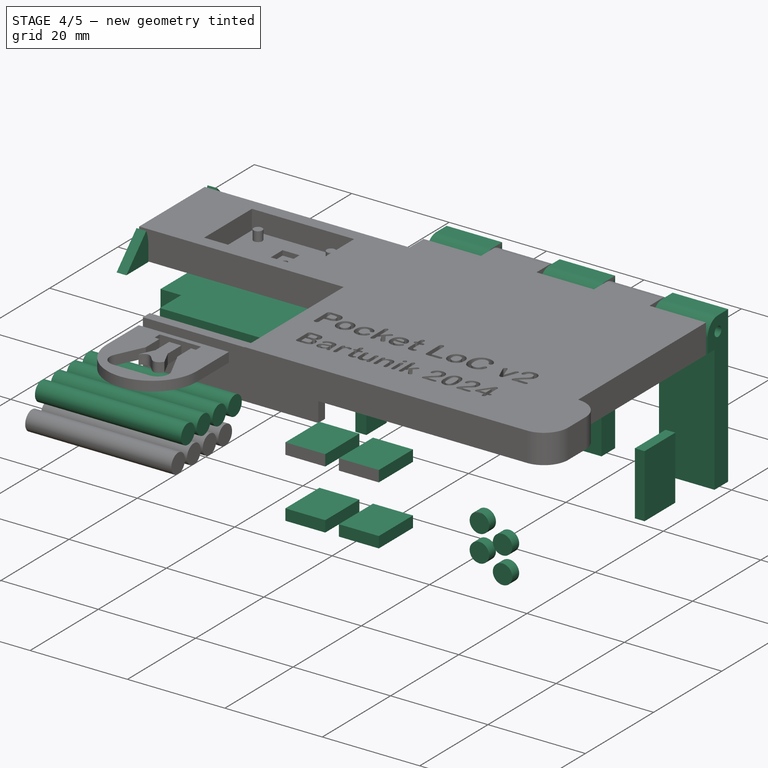
[diagram: stage 4 of 5 — iso view after this stage's code; geometry added in this stage tinted green]
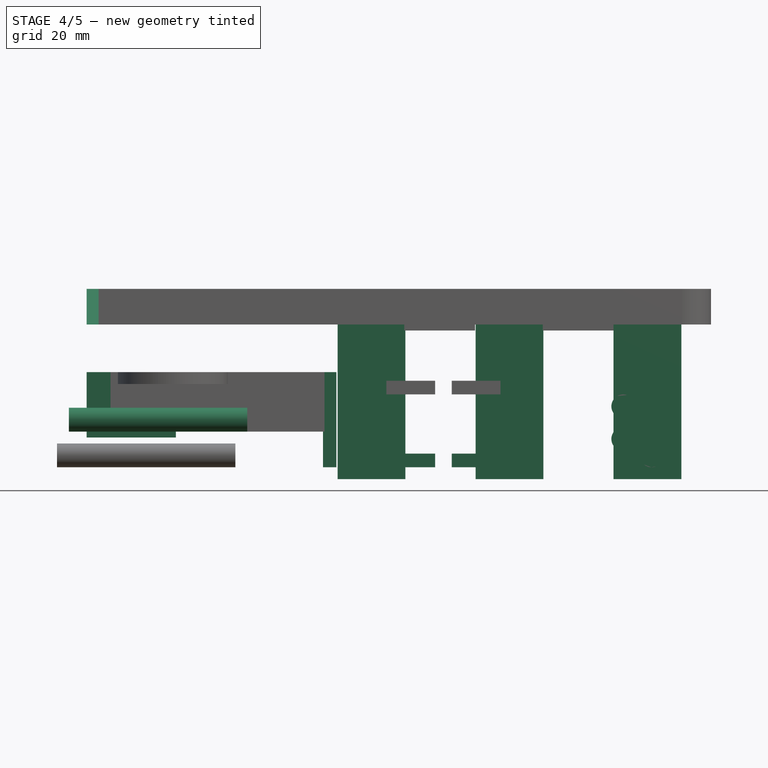
[diagram: stage 4 of 5 — front view after this stage's code; geometry added in this stage tinted green]
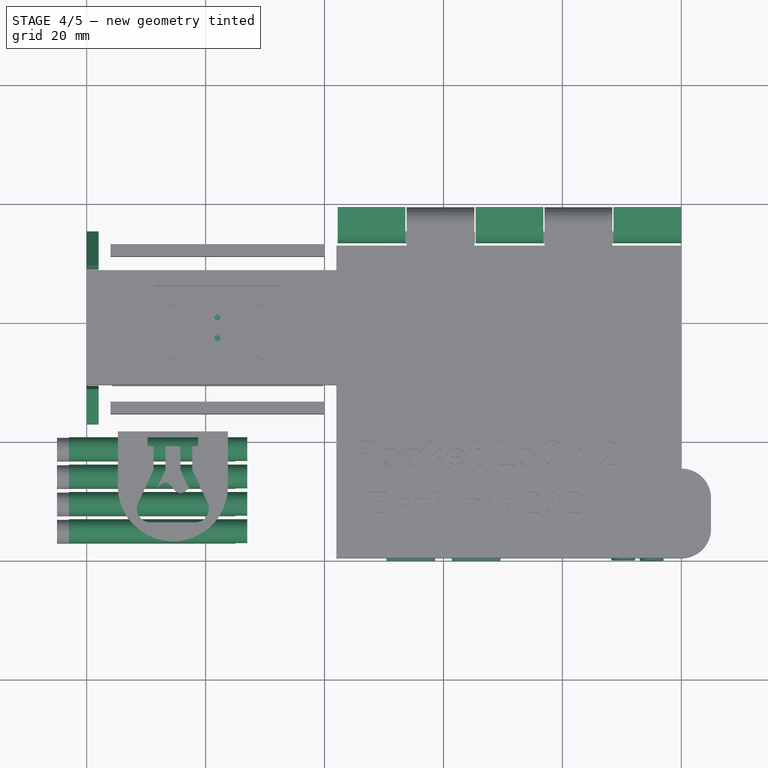
[diagram: stage 4 of 5 — top view after this stage's code; geometry added in this stage tinted green]
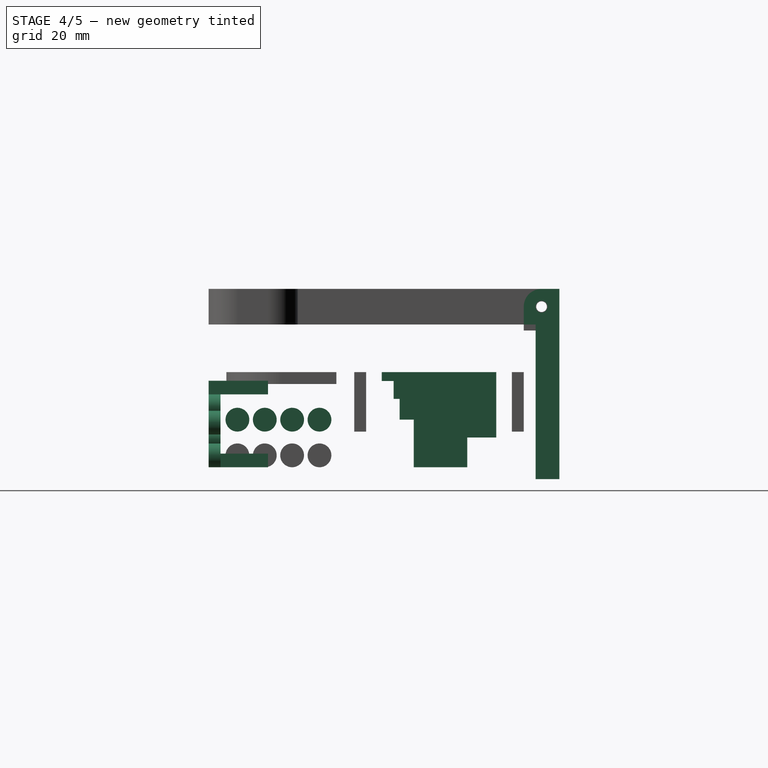
[diagram: stage 4 of 5 — right view after this stage's code; geometry added in this stage tinted green]
FEATURE [Sketcher::SketchObject] Sketch005  label="reservoir_tube_holes"
  ExternalGeometry = -> [Sketch004]
  FullyConstrained = true
  MapMode = 5
  Placement = pos=(0,0,0) rot=(1,0,0;1.5708rad)
  Support = -> [Extrude001]
  sketch-geometry (10):
    g0: Circle CenterX=90.2369 CenterY=4.75 CenterZ=0 NormalX=0 NormalY=0 NormalZ=1 AngleXU=0 Radius=2
    g1: Circle CenterX=95 CenterY=2 CenterZ=0 NormalX=0 NormalY=0 NormalZ=1 AngleXU=0 Radius=2
    g2: Circle CenterX=95 CenterY=7.5 CenterZ=0 NormalX=0 NormalY=0 NormalZ=1 AngleXU=0 Radius=2
    g3: Circle CenterX=90.2369 CenterY=10.25 CenterZ=0 NormalX=0 NormalY=0 NormalZ=1 AngleXU=0 Radius=2
    g4: LineSegment StartX=90.2369 StartY=10.25 StartZ=0 EndX=90.2369 EndY=4.75 EndZ=0
    g5: LineSegment StartX=95 StartY=7.5 StartZ=0 EndX=95 EndY=2 EndZ=0
    g6: LineSegment StartX=95 StartY=2 StartZ=0 EndX=98 EndY=2 EndZ=0
    g7: LineSegment StartX=95 StartY=7.5 StartZ=0 EndX=90.2369 EndY=4.75 EndZ=0
    g8: LineSegment StartX=95 StartY=7.5 StartZ=0 EndX=90.2369 EndY=10.25 EndZ=0
    g9: LineSegment StartX=90.2369 StartY=4.75 StartZ=0 EndX=95 EndY=2 EndZ=0
  constraints (25):
    c: Equal(g2,g3)
    c: Equal(g3,g0)
    c: Equal(g0,g1)
    c: Diameter(g1) = 4
    c: Tangent(g1,g-4)
    c: Tangent(g3,g-5)
    c: Coincident(g4,g3)
    c: Coincident(g4,g0)
    c: Vertical(g4)
    c: Coincident(g5,g2)
    c: Coincident(g5,g1)
    c: Vertical(g5)
    c: Coincident(g6,g1)
    c: PointOnObject(g6,g-3)
    c: Horizontal(g6)
    c: DistanceX(g6,g6) = 3
    c: Coincident(g7,g2)
    c: Coincident(g7,g0)
    c: Coincident(g8,g2)
    c: Coincident(g8,g3)
    c: Coincident(g9,g0)
    c: Coincident(g9,g1)
    c: Equal(g9,g7)
    c: Equal(g7,g8)
    c: Equal(g5,g8)
FEATURE [Part::Extrusion] Extrude005  label="reservoir_tube_holes_body"
  Base = -> Sketch005
  Dir = (0,-1,2e-16)
  DirMode = 2
  FaceMakerClass = Part::FaceMakerBullseye
  LengthFwd = 0
  LengthRev = 2
  Solid = true
  Symmetric = false
  expr: LengthRev = <<params>>.box_wall
FEATURE [Sketcher::SketchObject] Sketch007  label="sensor_ffc_hole"
  ExternalGeometry = -> [Sketch006,Extrude002]
  FullyConstrained = true
  MapMode = 5
  Placement = pos=(42,0,0) rot=(0.57735,0.57735,0.57735;2.0944rad)
  Support = -> [Extrude002]
  sketch-geometry (6):
    g0: LineSegment StartX=35.75 StartY=16 StartZ=0 EndX=41.75 EndY=16 EndZ=0
    g1: LineSegment StartX=41.75 StartY=16 StartZ=0 EndX=41.75 EndY=0 EndZ=0
    g2: LineSegment StartX=41.75 StartY=0 StartZ=0 EndX=35.75 EndY=0 EndZ=0
    g3: LineSegment StartX=35.75 StartY=0 StartZ=0 EndX=35.75 EndY=16 EndZ=0
    g4: LineSegment StartX=32.125 StartY=8 StartZ=0 EndX=41.75 EndY=8 EndZ=0
    g5: LineSegment StartX=45.375 StartY=8 StartZ=0 EndX=35.75 EndY=8 EndZ=0
  constraints (18):
    c: Coincident(g0,g1)
    c: Coincident(g1,g2)
    c: Coincident(g2,g3)
    c: Coincident(g3,g0)
    c: Horizontal(g0)
    c: Horizontal(g2)
    c: Vertical(g1)
    c: Vertical(g3)
    c: PointOnObject(g0,g-3)
    c: PointOnObject(g1,g-5)
    c: DistanceX(g0,g0) = 6
    c: Coincident(g4,g-4)
    c: PointOnObject(g4,g-4)
    c: Coincident(g5,g-4)
    c: PointOnObject(g5,g3)
    c: Horizontal(g5)
    c: Equal(g5,g4)
    c: PointOnObject(g4,g1)
FEATURE [Part::Extrusion] Extrude007  label="sensor_ffc_hole_body"
  Base = -> Sketch007
  Dir = (1,0,0)
  DirMode = 2
  FaceMakerClass = Part::FaceMakerBullseye
  LengthFwd = 0
  LengthRev = 2.25
  Solid = true
  Symmetric = false
  expr: LengthRev = (<<params>>.measurement_width * 1mm - <<sensor_space_body>>.LengthRev) / 2
FEATURE [Sketcher::SketchObject] Sketch008  label="sensor_usb_hole"
  ExternalGeometry = -> [Sketch006]
  FullyConstrained = true
  MapMode = 5
  Placement = pos=(-4e-16,0,0) rot=(0.57735,-0.57735,-0.57735;2.0944rad)
  Support = -> [Extrude001]
  sketch-geometry (4):
    g0: LineSegment StartX=-48.375 StartY=16 StartZ=0 EndX=-35.375 EndY=16 EndZ=0
    g1: LineSegment StartX=-35.375 StartY=16 StartZ=0 EndX=-35.375 EndY=5 EndZ=0
    g2: LineSegment StartX=-35.375 StartY=5 StartZ=0 EndX=-48.375 EndY=5 EndZ=0
    g3: LineSegment StartX=-48.375 StartY=5 StartZ=0 EndX=-48.375 EndY=16 EndZ=0
  constraints (11):
    c: DistanceX(g0,g0) = 13
    c: Coincident(g0,g3)
    c: Coincident(g3,g2)
    c: Coincident(g1,g2)
    c: Coincident(g1,g0)
    c: Horizontal(g0)
    c: Vertical(g1)
    c: Horizontal(g2)
    c: Vertical(g3)
    c: DistanceY(g1,g1) = 11
    c: Coincident(g0,g-3)
FEATURE [Part::Extrusion] Extrude008  label="sensor_usb_hole_body"
  Base = -> Sketch008
  Dir = (-1,0,0)
  DirMode = 2
  FaceMakerClass = Part::FaceMakerBullseye
  LengthFwd = 0
  LengthRev = 15
  Solid = true
  Symmetric = false
FEATURE [Sketcher::SketchObject] Sketch009  label="pump_usb_hole"
  ExternalGeometry = -> [Sketch002]
  FullyConstrained = true
  MapMode = 5
  Placement = pos=(100,0,0) rot=(0.57735,0.57735,0.57735;2.0944rad)
  Support = -> [Extrude001]
  sketch-geometry (4):
    g0: LineSegment StartX=43.5 StartY=0 StartZ=0 EndX=34.5 EndY=0 EndZ=0
    g1: LineSegment StartX=34.5 StartY=0 StartZ=0 EndX=34.5 EndY=13 EndZ=0
    g2: LineSegment StartX=34.5 StartY=13 StartZ=0 EndX=43.5 EndY=13 EndZ=0
    g3: LineSegment StartX=43.5 StartY=13 StartZ=0 EndX=43.5 EndY=0 EndZ=0
  constraints (12):
    c: Coincident(g0,g1)
    c: Coincident(g1,g2)
    c: Coincident(g2,g3)
    c: Coincident(g3,g0)
    c: Horizontal(g0)
    c: Horizontal(g2)
    c: Vertical(g1)
    c: Vertical(g3)
    c: PointOnObject(g0,g-4)
    c: DistanceX(g2,g2) = 9
    c: DistanceY(g1,g1) = 13
    c: DistanceX(g0,g-4) = 9.5
FEATURE [Part::Extrusion] Extrude009  label="pump_usb_hole_body"
  Base = -> Sketch009
  Dir = (1,0,0)
  DirMode = 2
  FaceMakerClass = Part::FaceMakerBullseye
  LengthFwd = 0
  LengthRev = 2
  Solid = true
  Symmetric = false
  expr: LengthRev = <<params>>.box_wall
FEATURE [Sketcher::SketchObject] Sketch010  label="outlet_tube_holes"
  ExternalGeometry = -> [Extrude002]
  FullyConstrained = true
  MapMode = 5
  Placement = pos=(27,0,0) rot=(0.57735,0.57735,0.57735;2.0944rad)
  Support = -> [Extrude002]
  sketch-geometry (11):
    g0: Circle CenterX=4.85 CenterY=8 CenterZ=0 NormalX=0 NormalY=0 NormalZ=1 AngleXU=0 Radius=2
    g1: Circle CenterX=9.45 CenterY=8 CenterZ=0 NormalX=0 NormalY=0 NormalZ=1 AngleXU=0 Radius=2
    g2: Circle CenterX=14.05 CenterY=8 CenterZ=0 NormalX=0 NormalY=0 NormalZ=1 AngleXU=0 Radius=2
    g3: Circle CenterX=18.65 CenterY=8 CenterZ=0 NormalX=0 NormalY=0 NormalZ=1 AngleXU=0 Radius=2
    g4: LineSegment StartX=18.65 StartY=8 StartZ=0 EndX=14.05 EndY=8 EndZ=0
    g5: LineSegment StartX=14.05 StartY=8 StartZ=0 EndX=9.45 EndY=8 EndZ=0
    g6: LineSegment StartX=9.45 StartY=8 StartZ=0 EndX=4.85 EndY=8 EndZ=0
    g7: GeomPoint X=1 Y=8 Z=0
    g8: GeomPoint X=22.5 Y=8 Z=0
    g9: LineSegment StartX=1 StartY=8 StartZ=0 EndX=4.85 EndY=8 EndZ=0
    g10: LineSegment StartX=18.65 StartY=8 StartZ=0 EndX=22.5 EndY=8 EndZ=0
  constraints (24):
    c: Equal(g2,g3)
    c: Equal(g3,g1)
    c: Equal(g1,g0)
    c: Coincident(g4,g3)
    c: Coincident(g4,g2)
    c: Horizontal(g4)
    c: Coincident(g5,g2)
    c: Coincident(g5,g1)
    c: Horizontal(g5)
    c: Coincident(g6,g1)
    c: Coincident(g6,g0)
    c: Horizontal(g6)
    c: Equal(g6,g5)
    c: Equal(g5,g4)
    c: Diameter(g0) = 4
    c: DistanceX(g6,g6) = 4.6
    c: Symmetric(g-5,g-1,g7)
    c: Symmetric(g-4,g-6,g8)
    c: Coincident(g9,g7)
    c: Coincident(g9,g0)
    c: Horizontal(g9)
    c: Coincident(g10,g3)
    c: Coincident(g10,g8)
    c: Equal(g10,g9)
FEATURE [Part::Extrusion] Extrude010  label="outlet_tube_holes_body"
  Base = -> Sketch010
  Dir = (1,0,0)
  DirMode = 2
  FaceMakerClass = Part::FaceMakerBullseye
  LengthFwd = 0
  LengthRev = 30
  Solid = true
  Symmetric = false
FEATURE [Part::FeaturePython] Array  label="base_hinges"  # Draft array (typed FeaturePython)
  AlwaysSyncPlacement = false
  Angle = 360
  ArrayType = 0
  Axis = (0,0,1)
  Base = -> Extrude011
  Center = (0,0,0)
  Count = 3
  ExpandArray = false
  Fuse = false
  IntervalAxis = (0,0,0)
  IntervalX = (-23.2,0,0)
  IntervalY = (0,100,0)
  IntervalZ = (0,0,100)
  NumberCircles = 3
  NumberPolar = 5
  NumberX = 3
  NumberY = 1
  NumberZ = 1
  PlacementList = 3 placements: arithmetic series from (0,0,0) step (-23.2,0,0) to (-46.4,0,0)
  RadialDistance = 50
  ScaleList = (3) [(1,1,1),(1,1,1),(1,1,1)]
  Symmetry = 1
  TangentialDistance = 25
  expr: .IntervalX.x = -(<<params>>.hinge_segment_size + <<params>>.hinge_tolerance) * 2
FEATURE [Sketcher::SketchObject] Sketch017  label="prong_holes"
  ExternalGeometry = -> [Sketch016]
  FullyConstrained = true
  MapMode = 5
  Placement = pos=(0,0,0) rot=(1,0,0;1.5708rad)
  Support = -> [Extrude001]
  sketch-geometry (25):
    g0: LineSegment StartX=50.4 StartY=14.55 StartZ=0 EndX=58.6 EndY=14.55 EndZ=0
    g1: LineSegment StartX=58.6 StartY=14.55 StartZ=0 EndX=58.6 EndY=12.25 EndZ=0
    g2: LineSegment StartX=58.6 StartY=12.25 StartZ=0 EndX=50.4 EndY=12.25 EndZ=0
    g3: LineSegment StartX=50.4 StartY=12.25 StartZ=0 EndX=50.4 EndY=14.55 EndZ=0
    g4: LineSegment StartX=61.4 StartY=14.55 StartZ=0 EndX=69.6 EndY=14.55 EndZ=0
    g5: LineSegment StartX=69.6 StartY=14.55 StartZ=0 EndX=69.6 EndY=12.25 EndZ=0
    g6: LineSegment StartX=69.6 StartY=12.25 StartZ=0 EndX=61.4 EndY=12.25 EndZ=0
    g7: LineSegment StartX=61.4 StartY=12.25 StartZ=0 EndX=61.4 EndY=14.55 EndZ=0
    g8: LineSegment StartX=50.5 StartY=14.25 StartZ=0 EndX=50.4 EndY=14.25 EndZ=0
    g9: LineSegment StartX=61.5 StartY=14.25 StartZ=0 EndX=61.4 EndY=14.25 EndZ=0
    g10: LineSegment StartX=50.5 StartY=14.25 StartZ=0 EndX=50.5 EndY=14.55 EndZ=0
    g11: LineSegment StartX=58.6 StartY=14.25 StartZ=0 EndX=58.5 EndY=14.25 EndZ=0
    g12: LineSegment StartX=50.4 StartY=2.3 StartZ=0 EndX=58.6 EndY=2.3 EndZ=0
    g13: LineSegment StartX=58.6 StartY=2.3 StartZ=0 EndX=58.6 EndY=0 EndZ=0
    g14: LineSegment StartX=58.6 StartY=0 StartZ=0 EndX=50.4 EndY=0 EndZ=0
    g15: LineSegment StartX=50.4 StartY=0 StartZ=0 EndX=50.4 EndY=2.3 EndZ=0
    g16: LineSegment StartX=61.4 StartY=2.3 StartZ=0 EndX=69.6 EndY=2.3 EndZ=0
    g17: LineSegment StartX=69.6 StartY=2.3 StartZ=0 EndX=69.6 EndY=0 EndZ=0
    g18: LineSegment StartX=69.6 StartY=0 StartZ=0 EndX=61.4 EndY=0 EndZ=0
    g19: LineSegment StartX=61.4 StartY=0 StartZ=0 EndX=61.4 EndY=2.3 EndZ=0
    g20: LineSegment StartX=61.4 StartY=2.3 StartZ=0 EndX=58.6 EndY=2.3 EndZ=0
    g21: LineSegment StartX=61.5 StartY=2 StartZ=0 EndX=61.4 EndY=2 EndZ=0
    g22: LineSegment StartX=58.6 StartY=2 StartZ=0 EndX=58.5 EndY=2 EndZ=0
    g23: LineSegment StartX=50.5 StartY=2 StartZ=0 EndX=50.4 EndY=2 EndZ=0
    g24: LineSegment StartX=61.4 StartY=14.55 StartZ=0 EndX=58.6 EndY=14.55 EndZ=0
  constraints (73):
    c: Coincident(g0,g1)
    c: Coincident(g1,g2)
    c: Coincident(g2,g3)
    c: Coincident(g3,g0)
    c: Horizontal(g0)
    c: Horizontal(g2)
    c: Vertical(g1)
    c: Vertical(g3)
    c: Coincident(g4,g5)
    c: Coincident(g5,g6)
    c: Coincident(g6,g7)
    c: Coincident(g7,g4)
    c: Horizontal(g4)
    c: Horizontal(g6)
    c: Vertical(g5)
    c: Vertical(g7)
    c: Equal(g0,g4)
    c: Equal(g3,g7)
    c: Coincident(g8,g-4)
    c: PointOnObject(g8,g3)
    c: Horizontal(g8)
    c: Coincident(g9,g-6)
    c: PointOnObject(g9,g7)
    c: Horizontal(g9)
    c: Coincident(g10,g8)
    c: PointOnObject(g10,g0)
    c: Vertical(g10)
    c: DistanceY(g10,g10) = 0.3
    c: DistanceX(g8,g8) = 0.1
    c: PointOnObject(g-4,g2)
    c: PointOnObject(g11,g1)
    c: Coincident(g11,g-3)
    c: Horizontal(g11)
    c: Equal(g11,g8)
    c: Equal(g9,g8)
    c: Coincident(g12,g13)
    c: Coincident(g13,g14)
    c: Coincident(g14,g15)
    c: Coincident(g15,g12)
    c: Horizontal(g12)
    c: Horizontal(g14)
    c: Vertical(g13)
    c: Vertical(g15)
    c: Coincident(g16,g17)
    c: Coincident(g17,g18)
    c: Coincident(g18,g19)
    c: Coincident(g19,g16)
    c: Horizontal(g16)
    c: Horizontal(g18)
    c: Vertical(g17)
    c: Vertical(g19)
    c: PointOnObject(g-10,g14)
    c: PointOnObject(g-8,g18)
    c: Coincident(g20,g16)
    c: Coincident(g20,g12)
    c: Horizontal(g20)
    c: Coincident(g21,g-8)
    c: PointOnObject(g21,g19)
    c: PointOnObject(g22,g13)
    c: Coincident(g22,g-9)
    c: Horizontal(g22)
    c: Coincident(g23,g-10)
    c: PointOnObject(g23,g15)
    c: Horizontal(g23)
    c: Horizontal(g21)
    c: Equal(g21,g22)
    c: Equal(g22,g23)
    c: Equal(g23,g8)
    c: Equal(g16,g12)
    c: Equal(g15,g5)
    c: Coincident(g24,g4)
    c: Coincident(g24,g0)
    c: Horizontal(g24)
FEATURE [Part::Extrusion] Extrude017  label="prong_holes_body"
  Base = -> Sketch017
  Dir = (0,-1,2e-16)
  DirMode = 2
  FaceMakerClass = Part::FaceMakerBullseye
  LengthFwd = 0
  LengthRev = 10
  Solid = true
  Symmetric = false
FEATURE [Sketcher::SketchObject] Sketch029  label="top_bracket"
  ExternalGeometry = -> [Extrude001,Sketch023,Extrude012]
  FullyConstrained = true
  MapMode = 5
  Placement = pos=(-4e-16,0,0) rot=(0.57735,-0.57735,-0.57735;2.0944rad)
  Support = -> [Extrude001]
  sketch-geometry (14):
    g0: LineSegment StartX=-48.525 StartY=24 StartZ=0 EndX=-55 EndY=24 EndZ=0
    g1: LineSegment StartX=-48.525 StartY=24 StartZ=0 EndX=-48.525 EndY=27 EndZ=0
    g2: LineSegment StartX=-28.975 StartY=27 StartZ=0 EndX=-28.975 EndY=24 EndZ=0
    g3: LineSegment StartX=-28.975 StartY=24 StartZ=0 EndX=-22.5 EndY=24 EndZ=0
    g4: ArcOfCircle CenterX=-56 CenterY=27 CenterZ=0 NormalX=0 NormalY=0 NormalZ=1 AngleXU=0 Radius=7.475 StartAngle=0 EndAngle=0.412977
    g5: LineSegment StartX=-48.525 StartY=27 StartZ=0 EndX=-56 EndY=27 EndZ=0
    g6: LineSegment StartX=-28.975 StartY=27 StartZ=0 EndX=-21.5 EndY=27 EndZ=0
    g7: LineSegment StartX=-28.975 StartY=27 StartZ=0 EndX=-48.525 EndY=27 EndZ=0
    g8: ArcOfCircle CenterX=-21.5 CenterY=27 CenterZ=0 NormalX=0 NormalY=0 NormalZ=1 AngleXU=0 Radius=7.475 StartAngle=2.72862 EndAngle=3.14159
    g9: LineSegment StartX=-28.3466 StartY=30 StartZ=0 EndX=-22.5 EndY=24 EndZ=0
    g10: LineSegment StartX=-49.1534 StartY=30 StartZ=0 EndX=-55 EndY=24 EndZ=0
    g11: LineSegment StartX=-49.1534 StartY=30 StartZ=0 EndX=-28.3466 EndY=30 EndZ=0
    g12: LineSegment StartX=-48.375 StartY=24 StartZ=0 EndX=-48.525 EndY=24 EndZ=0
    g13: LineSegment StartX=-28.975 StartY=24 StartZ=0 EndX=-29.125 EndY=24 EndZ=0
  constraints (36):
    c: Horizontal(g0)
    c: Coincident(g1,g0)
    c: Vertical(g1)
    c: Vertical(g2)
    c: Coincident(g3,g2)
    c: Horizontal(g3)
    c: Equal(g3,g0)
    c: Coincident(g0,g-3)
    c: PointOnObject(g3,g-3)
    c: Coincident(g4,g-4)
    c: Coincident(g4,g1)
    c: Coincident(g5,g1)
    c: Coincident(g5,g4)
    c: Horizontal(g5)
    c: Coincident(g6,g2)
    c: Coincident(g7,g2)
    c: Coincident(g7,g1)
    c: Horizontal(g7)
    c: Horizontal(g6)
    c: Equal(g6,g5)
    c: Coincident(g8,g6)
    c: Coincident(g8,g2)
    c: Coincident(g9,g8)
    c: Coincident(g9,g3)
    c: Coincident(g10,g4)
    c: Coincident(g10,g0)
    c: Coincident(g11,g4)
    c: Coincident(g11,g8)
    c: Horizontal(g11)
    c: DistanceX(g0,g-6) = 0.15
    c: PointOnObject(g-5,g11)
    c: Coincident(g12,g-6)
    c: Coincident(g12,g0)
    c: Coincident(g13,g2)
    c: Equal(g13,g12)
    c: Coincident(g13,g-5)
FEATURE [Part::Extrusion] Extrude031  label="top_bracket_body"
  Base = -> Sketch029
  Dir = (-1,0,0)
  DirMode = 2
  FaceMakerClass = Part::FaceMakerBullseye
  LengthFwd = 0
  LengthRev = 2
  Solid = true
  Symmetric = false
  expr: LengthRev = <<params>>.box_wall
FEATURE [Part::MultiFuse] Fusion005  label="base_cuts"
  Shapes = -> [Extrude005,Extrude006,Extrude007,Extrude008,Extrude009,Extrude010,Extrude017,Extrude026,Extrude030,Extrude034,Extrude035]
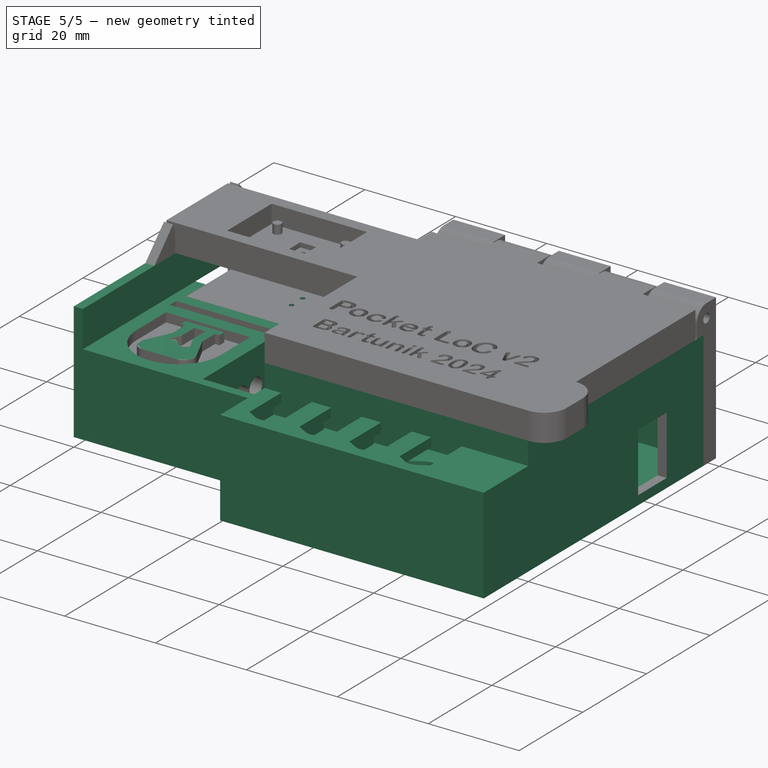
[diagram: stage 5 of 5 — iso view after this stage's code; geometry added in this stage tinted green]
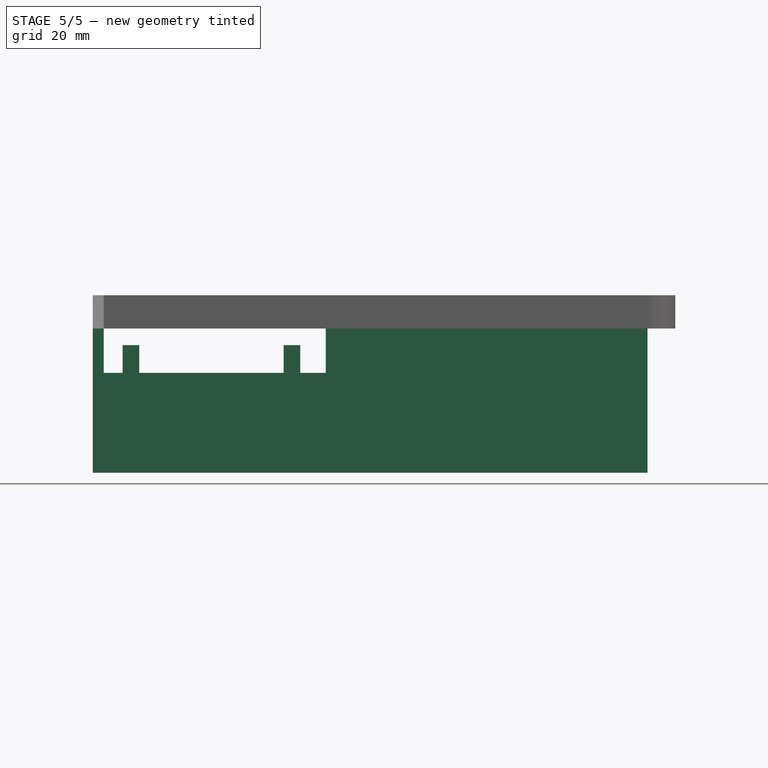
[diagram: stage 5 of 5 — front view after this stage's code; geometry added in this stage tinted green]
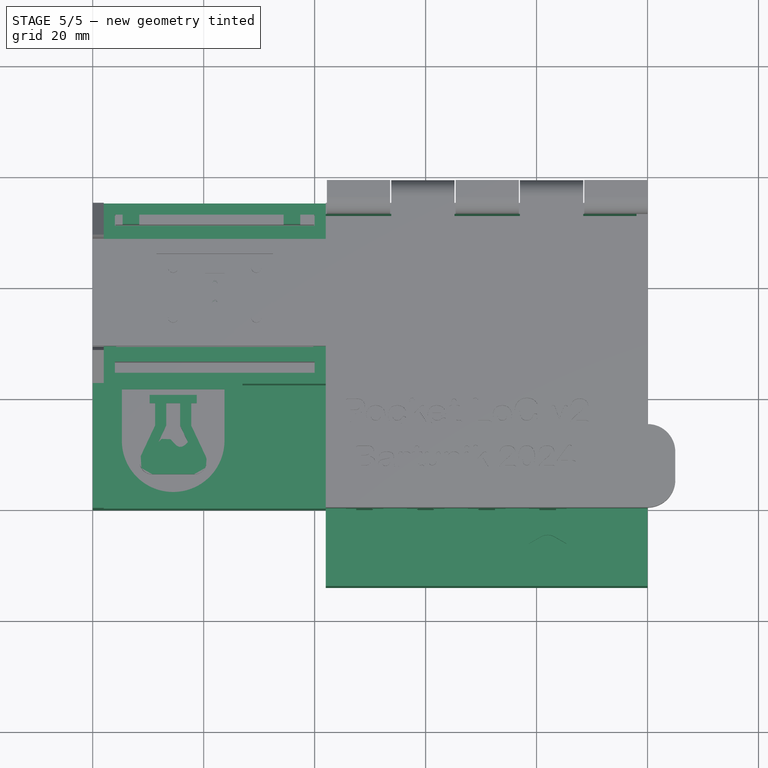
[diagram: stage 5 of 5 — top view after this stage's code; geometry added in this stage tinted green]
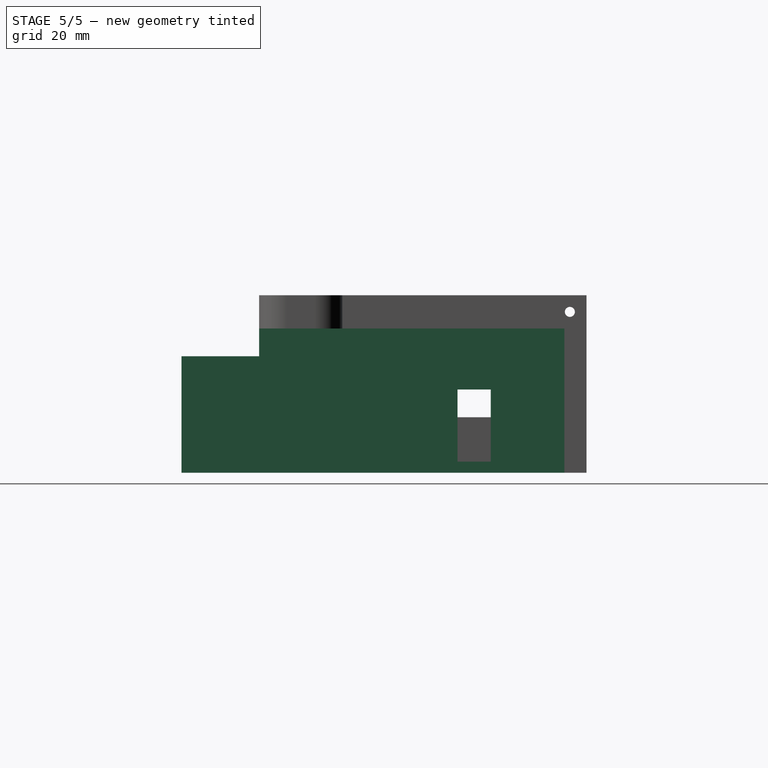
[diagram: stage 5 of 5 — right view after this stage's code; geometry added in this stage tinted green]
FEATURE [Sketcher::SketchObject] Sketch014  label="reservoir_plug_back"
  ExternalGeometry = -> [Extrude004]
  FullyConstrained = true
  MapMode = 5
  Placement = pos=(0,-12,2.6e-15) rot=(1,0,0;1.5708rad)
  Support = -> [Extrude004]
  sketch-geometry (4):
    g0: LineSegment StartX=100 StartY=19 StartZ=0 EndX=42 EndY=19 EndZ=0
    g1: LineSegment StartX=42 StartY=19 StartZ=0 EndX=42 EndY=-2 EndZ=0
    g2: LineSegment StartX=42 StartY=-2 StartZ=0 EndX=100 EndY=-2 EndZ=0
    g3: LineSegment StartX=100 StartY=-2 StartZ=0 EndX=100 EndY=19 EndZ=0
  constraints (10):
    c: Coincident(g0,g1)
    c: Coincident(g1,g2)
    c: Coincident(g2,g3)
    c: Coincident(g3,g0)
    c: Horizontal(g0)
    c: Horizontal(g2)
    c: Vertical(g1)
    c: Vertical(g3)
    c: Coincident(g0,g-3)
    c: Coincident(g2,g-5)
FEATURE [Part::Extrusion] Extrude014  label="reservoir_plug_back_body"
  Base = -> Sketch014
  Dir = (0,-1,2e-16)
  DirMode = 2
  FaceMakerClass = Part::FaceMakerBullseye
  LengthFwd = 2
  LengthRev = 0
  Solid = true
  Symmetric = false
FEATURE [Sketcher::SketchObject] Sketch015  label="reservoir_rotation_stop"
  ExternalGeometry = -> [Extrude004]
  FullyConstrained = true
  MapMode = 5
  Placement = pos=(0,4.2e-15,19) rot=(0,0,1;0rad)
  Support = -> [Extrude004]
  sketch-geometry (36):
    g0: Circle CenterX=49 CenterY=-9 CenterZ=0 NormalX=0 NormalY=0 NormalZ=1 AngleXU=0 Radius=2.5
    g1: LineSegment StartX=49 StartY=-9 StartZ=0 EndX=54 EndY=-9 EndZ=0
    g2: LineSegment StartX=49 StartY=-9 StartZ=0 EndX=44 EndY=-9 EndZ=0
    g3: LineSegment StartX=54 StartY=-9 StartZ=0 EndX=50.25 EndY=-11.1651 EndZ=0
    g4: LineSegment StartX=44 StartY=-9 StartZ=0 EndX=47.75 EndY=-11.1651 EndZ=0
    g5: ArcOfCircle CenterX=49 CenterY=-9 CenterZ=0 NormalX=0 NormalY=0 NormalZ=1 AngleXU=0 Radius=2.5 StartAngle=4.18879 EndAngle=5.23599
    g6: LineSegment StartX=54 StartY=-9 StartZ=0 EndX=54 EndY=-12 EndZ=0
    g7: LineSegment StartX=44 StartY=-9 StartZ=0 EndX=44 EndY=-12 EndZ=0
    g8: LineSegment StartX=54 StartY=-12 StartZ=0 EndX=44 EndY=-12 EndZ=0
    g9: Circle CenterX=60 CenterY=-9 CenterZ=0 NormalX=0 NormalY=0 NormalZ=1 AngleXU=0 Radius=2.5
    g10: LineSegment StartX=60 StartY=-9 StartZ=0 EndX=65 EndY=-9 EndZ=0
    g11: LineSegment StartX=60 StartY=-9 StartZ=0 EndX=55 EndY=-9 EndZ=0
    g12: LineSegment StartX=65 StartY=-9 StartZ=0 EndX=61.25 EndY=-11.1651 EndZ=0
    g13: LineSegment StartX=55 StartY=-9 StartZ=0 EndX=58.75 EndY=-11.1651 EndZ=0
    g14: ArcOfCircle CenterX=60 CenterY=-9 CenterZ=0 NormalX=0 NormalY=0 NormalZ=1 AngleXU=0 Radius=2.5 StartAngle=4.18879 EndAngle=5.23599
    g15: LineSegment StartX=65 StartY=-9 StartZ=0 EndX=65 EndY=-12 EndZ=0
    g16: LineSegment StartX=55 StartY=-9 StartZ=0 EndX=55 EndY=-12 EndZ=0
    g17: LineSegment StartX=65 StartY=-12 StartZ=0 EndX=55 EndY=-12 EndZ=0
    g18: Circle CenterX=71 CenterY=-9 CenterZ=0 NormalX=0 NormalY=0 NormalZ=1 AngleXU=0 Radius=2.5
    g19: LineSegment StartX=71 StartY=-9 StartZ=0 EndX=76 EndY=-9 EndZ=0
    g20: LineSegment StartX=71 StartY=-9 StartZ=0 EndX=66 EndY=-9 EndZ=0
    g21: LineSegment StartX=76 StartY=-9 StartZ=0 EndX=72.25 EndY=-11.1651 EndZ=0
    g22: LineSegment StartX=66 StartY=-9 StartZ=0 EndX=69.75 EndY=-11.1651 EndZ=0
    g23: ArcOfCircle CenterX=71 CenterY=-9 CenterZ=0 NormalX=0 NormalY=0 NormalZ=1 AngleXU=0 Radius=2.5 StartAngle=4.18879 EndAngle=5.23599
    g24: LineSegment StartX=76 StartY=-9 StartZ=0 EndX=76 EndY=-12 EndZ=0
    g25: LineSegment StartX=66 StartY=-9 StartZ=0 EndX=66 EndY=-12 EndZ=0
    g26: LineSegment StartX=76 StartY=-12 StartZ=0 EndX=66 EndY=-12 EndZ=0
    g27: Circle CenterX=82 CenterY=-9 CenterZ=0 NormalX=0 NormalY=0 NormalZ=1 AngleXU=0 Radius=2.5
    g28: LineSegment StartX=82 StartY=-9 StartZ=0 EndX=87 EndY=-9 EndZ=0
    g29: LineSegment StartX=82 StartY=-9 StartZ=0 EndX=77 EndY=-9 EndZ=0
    g30: LineSegment StartX=87 StartY=-9 StartZ=0 EndX=83.25 EndY=-11.1651 EndZ=0
    g31: LineSegment StartX=77 StartY=-9 StartZ=0 EndX=80.75 EndY=-11.1651 EndZ=0
    g32: ArcOfCircle CenterX=82 CenterY=-9 CenterZ=0 NormalX=0 NormalY=0 NormalZ=1 AngleXU=0 Radius=2.5 StartAngle=4.18879 EndAngle=5.23599
    g33: LineSegment StartX=87 StartY=-9 StartZ=0 EndX=87 EndY=-12 EndZ=0
    g34: LineSegment StartX=77 StartY=-9 StartZ=0 EndX=77 EndY=-12 EndZ=0
    g35: LineSegment StartX=87 StartY=-12 StartZ=0 EndX=77 EndY=-12 EndZ=0
  constraints (84):
    c: Coincident(g1,g0)
    c: Horizontal(g1)
    c: Coincident(g2,g0)
    c: Horizontal(g2)
    c: Equal(g1,g2)
    c: Coincident(g3,g1)
    c: PointOnObject(g3,g0)
    c: Coincident(g4,g2)
    c: Coincident(g5,g0)
    c: Tangent(g5,g3) = 1.5708
    c: Tangent(g5,g4) = -1.5708
    c: Diameter(g0) = 5
    c: Coincident(g6,g3)
    c: Coincident(g7,g4)
    c: Coincident(g8,g6)
    c: Coincident(g8,g7)
    c: Vertical(g6)
    c: Vertical(g7)
    c: DistanceY(g6,g6) = 3
    c: Coincident(g10,g9)
    c: Horizontal(g10)
    c: Coincident(g11,g9)
    c: Horizontal(g11)
    c: Equal(g10,g11)
    c: Coincident(g12,g10)
    c: PointOnObject(g12,g9)
    c: Coincident(g13,g11)
    c: Coincident(g14,g9)
    c: Tangent(g14,g12) = 1.5708
    c: Tangent(g14,g13) = -1.5708
    c: Equal(g0,g9) = 5
    c: Coincident(g15,g12)
    c: Coincident(g16,g13)
    c: Coincident(g17,g15)
    c: Coincident(g17,g16)
    c: Vertical(g15)
    c: Vertical(g16)
    c: Equal(g6,g15) = 3
    c: Coincident(g19,g18)
    c: Horizontal(g19)
    c: Coincident(g20,g18)
    c: Horizontal(g20)
    c: Equal(g19,g20)
    c: Coincident(g21,g19)
    c: PointOnObject(g21,g18)
    c: Coincident(g22,g20)
    c: Coincident(g23,g18)
    c: Tangent(g23,g21) = 1.5708
    c: Tangent(g23,g22) = -1.5708
    c: Equal(g0,g18) = 5
    c: Coincident(g24,g21)
    c: Coincident(g25,g22)
    c: Coincident(g26,g24)
    c: Coincident(g26,g25)
    c: Vertical(g24)
    c: Vertical(g25)
    c: Equal(g6,g24) = 3
    c: Coincident(g28,g27)
    c: Horizontal(g28)
    c: Coincident(g29,g27)
    c: Horizontal(g29)
    c: Equal(g28,g29)
    c: Coincident(g30,g28)
    c: PointOnObject(g30,g27)
    c: Coincident(g31,g29)
    c: Coincident(g32,g27)
    c: Tangent(g32,g30) = 1.5708
    c: Tangent(g32,g31) = -1.5708
    c: Equal(g18,g27) = 5
    c: Coincident(g33,g30)
    c: Coincident(g34,g31)
    c: Coincident(g35,g33)
    c: Coincident(g35,g34)
    c: Vertical(g33)
    c: Vertical(g34)
    c: Equal(g24,g33) = 3
    c: Coincident(g7,g-3)
    c: Coincident(g16,g-4)
    c: Coincident(g25,g-5)
    c: Coincident(g34,g-6)
    c: Coincident(g6,g-10)
    c: Coincident(g15,g-9)
    c: Coincident(g24,g-8)
    c: Coincident(g33,g-7)
FEATURE [Part::Extrusion] Extrude015  label="reservoir_rotation_stop_body"
  Base = -> Sketch015
  Dir = (0,2e-16,1)
  DirMode = 2
  FaceMakerClass = Part::FaceMakerBullseye
  LengthFwd = 0
  LengthRev = 6.75
  Solid = true
  Symmetric = false
FEATURE [Sketcher::SketchObject] Sketch016  label="reservoir_prongs"
  ExternalGeometry = -> [Extrude004,Sketch004]
  FullyConstrained = true
  MapMode = 5
  Placement = pos=(0,0,0) rot=(0,0.707107,0.707107;3.14159rad)
  Support = -> [Extrude004]
  sketch-geometry (18):
    g0: LineSegment StartX=-69.5 StartY=14.25 StartZ=0 EndX=-61.5 EndY=14.25 EndZ=0
    g1: LineSegment StartX=-61.5 StartY=14.25 StartZ=0 EndX=-61.5 EndY=12.25 EndZ=0
    g2: LineSegment StartX=-61.5 StartY=12.25 StartZ=0 EndX=-69.5 EndY=12.25 EndZ=0
    g3: LineSegment StartX=-69.5 StartY=12.25 StartZ=0 EndX=-69.5 EndY=14.25 EndZ=0
    g4: LineSegment StartX=-58.5 StartY=14.25 StartZ=0 EndX=-50.5 EndY=14.25 EndZ=0
    g5: LineSegment StartX=-50.5 StartY=14.25 StartZ=0 EndX=-50.5 EndY=12.25 EndZ=0
    g6: LineSegment StartX=-50.5 StartY=12.25 StartZ=0 EndX=-58.5 EndY=12.25 EndZ=0
    g7: LineSegment StartX=-58.5 StartY=12.25 StartZ=0 EndX=-58.5 EndY=14.25 EndZ=0
    g8: LineSegment StartX=-69.5 StartY=2 StartZ=0 EndX=-61.5 EndY=2 EndZ=0
    g9: LineSegment StartX=-61.5 StartY=2 StartZ=0 EndX=-61.5 EndY=0 EndZ=0
    g10: LineSegment StartX=-61.5 StartY=0 StartZ=0 EndX=-69.5 EndY=0 EndZ=0
    g11: LineSegment StartX=-69.5 StartY=0 StartZ=0 EndX=-69.5 EndY=2 EndZ=0
    g12: LineSegment StartX=-58.5 StartY=2 StartZ=0 EndX=-50.5 EndY=2 EndZ=0
    g13: LineSegment StartX=-50.5 StartY=2 StartZ=0 EndX=-50.5 EndY=0 EndZ=0
    g14: LineSegment StartX=-50.5 StartY=0 StartZ=0 EndX=-58.5 EndY=0 EndZ=0
    g15: LineSegment StartX=-58.5 StartY=0 StartZ=0 EndX=-58.5 EndY=2 EndZ=0
    g16: LineSegment StartX=-61.5 StartY=12.25 StartZ=0 EndX=-61.5 EndY=2 EndZ=0
    g17: LineSegment StartX=-58.5 StartY=12.25 StartZ=0 EndX=-58.5 EndY=2 EndZ=0
  constraints (48):
    c: Coincident(g0,g1)
    c: Coincident(g1,g2)
    c: Coincident(g2,g3)
    c: Coincident(g3,g0)
    c: Horizontal(g0)
    c: Horizontal(g2)
    c: Vertical(g1)
    c: Vertical(g3)
    c: Coincident(g0,g-3)
    c: Coincident(g1,g-4)
    c: Coincident(g4,g5)
    c: Coincident(g5,g6)
    c: Coincident(g6,g7)
    c: Coincident(g7,g4)
    c: Horizontal(g4)
    c: Horizontal(g6)
    c: Vertical(g5)
    c: Vertical(g7)
    c: Coincident(g4,g-5)
    c: Coincident(g5,g-6)
    c: Coincident(g8,g9)
    c: Coincident(g9,g10)
    c: Coincident(g10,g11)
    c: Coincident(g11,g8)
    c: Horizontal(g8)
    c: Horizontal(g10)
    c: Vertical(g9)
    c: Vertical(g11)
    c: Coincident(g12,g13)
    c: Coincident(g13,g14)
    c: Coincident(g14,g15)
    c: Coincident(g15,g12)
    c: Horizontal(g12)
    c: Horizontal(g14)
    c: Vertical(g13)
    c: Vertical(g15)
    c: Equal(g3,g11)
    c: Equal(g11,g15)
    c: Equal(g2,g8)
    c: Equal(g8,g12)
    c: Coincident(g16,g1)
    c: Coincident(g16,g8)
    c: Vertical(g16)
    c: Coincident(g17,g6)
    c: Coincident(g17,g12)
    c: Vertical(g17)
    c: PointOnObject(g9,g-7)
    c: PointOnObject(g14,g-7)
FEATURE [Part::Extrusion] Extrude016  label="reservoir_prongs_body"
  Base = -> Sketch016
  Dir = (0,1,-2e-16)
  DirMode = 2
  FaceMakerClass = Part::FaceMakerBullseye
  LengthFwd = 5
  LengthRev = 12
  Solid = true
  Symmetric = false
  expr: LengthRev = <<reservoir_plugs_body>>.LengthFwd
FEATURE [Part::MultiFuse] Fusion002  label="reservoir"
  Shapes = -> [Extrude004,Extrude014,Extrude015,Extrude016]
FEATURE [Sketcher::SketchObject] Sketch025  label="position_holder"
  ExternalGeometry = -> [Extrude026]
  FullyConstrained = true
  MapMode = 5
  Placement = pos=(0,53,0) rot=(0,0.707107,0.707107;3.14159rad)
  Support = -> [Extrude026]
  sketch-geometry (19):
    g0: LineSegment StartX=-4.1 StartY=16 StartZ=0 EndX=-4.1 EndY=6.2 EndZ=0
    g1: LineSegment StartX=-4.1 StartY=6.2 StartZ=0 EndX=-39.9 EndY=6.2 EndZ=0
    g2: LineSegment StartX=-39.9 StartY=6.2 StartZ=0 EndX=-39.9 EndY=16 EndZ=0
    g3: LineSegment StartX=-4 StartY=16 StartZ=0 EndX=-4.1 EndY=16 EndZ=0
    g4: LineSegment StartX=-39.9 StartY=16 StartZ=0 EndX=-40 EndY=16 EndZ=0
    g5: LineSegment StartX=-4.1 StartY=6.2 StartZ=0 EndX=-4.1 EndY=6 EndZ=0
    g6: LineSegment StartX=-39.9 StartY=16 StartZ=0 EndX=-37.4 EndY=16 EndZ=0
    g7: LineSegment StartX=-4.1 StartY=16 StartZ=0 EndX=-5.4 EndY=16 EndZ=0
    g8: LineSegment StartX=-8.4 StartY=16 StartZ=0 EndX=-34.4 EndY=16 EndZ=0
    g9: LineSegment StartX=-34.4 StartY=16 StartZ=0 EndX=-34.4 EndY=21 EndZ=0
    g10: LineSegment StartX=-34.4 StartY=21 StartZ=0 EndX=-37.4 EndY=21 EndZ=0
    g11: LineSegment StartX=-37.4 StartY=21 StartZ=0 EndX=-37.4 EndY=16 EndZ=0
    g12: LineSegment StartX=-5.4 StartY=16 StartZ=0 EndX=-5.4 EndY=21 EndZ=0
    g13: LineSegment StartX=-5.4 StartY=21 StartZ=0 EndX=-8.4 EndY=21 EndZ=0
    g14: LineSegment StartX=-8.4 StartY=21 StartZ=0 EndX=-8.4 EndY=16 EndZ=0
    g15: LineSegment StartX=-34.4 StartY=21 StartZ=0 EndX=-8.4 EndY=21 EndZ=0
    g16: Circle CenterX=-36.4373 CenterY=11.1 CenterZ=0 NormalX=0 NormalY=0 NormalZ=1 AngleXU=0 Radius=1
    g17: LineSegment StartX=-39.9 StartY=16 StartZ=0 EndX=-36.4373 EndY=11.1 EndZ=0
    g18: LineSegment StartX=-39.9 StartY=6.2 StartZ=0 EndX=-36.4373 EndY=11.1 EndZ=0
  constraints (52):
    c: Coincident(g0,g1)
    c: Coincident(g1,g2)
    c: Horizontal(g1)
    c: Vertical(g0)
    c: Vertical(g2)
    c: PointOnObject(g2,g-6)
    c: Coincident(g3,g-6)
    c: Coincident(g4,g-6)
    c: Coincident(g5,g0)
    c: PointOnObject(g5,g-4)
    c: Vertical(g5)
    c: DistanceX(g3,g3) = 0.1
    c: DistanceY(g5,g5) = 0.2
    c: Coincident(g4,g2)
    c: Coincident(g0,g3)
    c: Coincident(g6,g2)
    c: Coincident(g7,g0)
    c: Horizontal(g8)
    c: Coincident(g9,g8)
    c: Vertical(g9)
    c: Coincident(g10,g9)
    c: Horizontal(g10)
    c: Coincident(g11,g10)
    c: Coincident(g11,g6)
    c: Coincident(g12,g7)
    c: Coincident(g13,g12)
    c: Coincident(g14,g13)
    c: Coincident(g14,g8)
    c: Vertical(g14)
    c: Horizontal(g7)
    c: Horizontal(g6)
    c: PointOnObject(g8,g-6)
    c: Vertical(g12)
    c: Horizontal(g13)
    c: Vertical(g11)
    c: Coincident(g15,g9)
    c: Coincident(g15,g13)
    c: Horizontal(g15)
    c: Equal(g10,g13)
    c: DistanceX(g10,g10) = 3
    c: DistanceX(g15,g15) = 26
    c: DistanceY(g11,g11) = 5
    c: DistanceX(g6,g6) = 2.5
    c: PointOnObject(g7,g-6)
    c: Equal(g3,g4)
    c: Diameter(g16) = 2
    c: Coincident(g17,g2)
    c: Coincident(g17,g16)
    c: Coincident(g18,g1)
    c: Coincident(g18,g16)
    c: Equal(g18,g17)
    c: Distance(g17) = 6
FEATURE [Part::Extrusion] Extrude027  label="position_holder_body"
  Base = -> Sketch025
  Dir = (0,1,-2e-16)
  DirMode = 2
  FaceMakerClass = Part::FaceMakerBullseye
  LengthFwd = 0
  LengthRev = 1.8
  Solid = true
  Symmetric = false
FEATURE [Sketcher::SketchObject] Sketch026  label="reservoir_insert"
  ExternalGeometry = -> [Extrude004,Sketch015]
  FullyConstrained = true
  MapMode = 5
  Placement = pos=(0,3.1e-15,14.25) rot=(0,0,1;0rad)
  Support = -> [Extrude004]
  sketch-geometry (14):
    g0: LineSegment StartX=86.9 StartY=-0.5 StartZ=0 EndX=86.9 EndY=-7.19226 EndZ=0
    g1: LineSegment StartX=77.1 StartY=-7.19226 StartZ=0 EndX=77.1 EndY=-0.5 EndZ=0
    g2: LineSegment StartX=77.1 StartY=-7.19226 StartZ=0 EndX=80.75 EndY=-5.08494 EndZ=0
    g3: LineSegment StartX=86.9 StartY=-7.19226 StartZ=0 EndX=83.25 EndY=-5.08494 EndZ=0
    g4: Circle CenterX=82 CenterY=-9 CenterZ=0 NormalX=0 NormalY=0 NormalZ=1 AngleXU=0 Radius=2.5
    g5: Circle CenterX=82 CenterY=-7.25 CenterZ=0 NormalX=0 NormalY=0 NormalZ=1 AngleXU=0 Radius=2.5
    g6: ArcOfCircle CenterX=82 CenterY=-7.25 CenterZ=0 NormalX=0 NormalY=0 NormalZ=1 AngleXU=0 Radius=2.5 StartAngle=1.0472 EndAngle=2.0944
    g7: LineSegment StartX=82 StartY=-4.75 StartZ=0 EndX=82 EndY=-11.5 EndZ=0
    g8: LineSegment StartX=78.625 StartY=1.1e-15 StartZ=0 EndX=85.375 EndY=1.1e-15 EndZ=0
    g9: LineSegment StartX=87 StartY=0 StartZ=0 EndX=86.9 EndY=-0.5 EndZ=0
    g10: LineSegment StartX=77.1 StartY=-0.5 StartZ=0 EndX=77 EndY=0 EndZ=0
    g11: LineSegment StartX=83.25 StartY=-5.08494 StartZ=0 EndX=80.75 EndY=-5.08494 EndZ=0
    g12: LineSegment StartX=80.75 StartY=-11.1651 StartZ=0 EndX=83.25 EndY=-11.1651 EndZ=0
    g13: LineSegment StartX=86.9 StartY=-0.5 StartZ=0 EndX=77.1 EndY=-0.5 EndZ=0
  constraints (35):
    c: Vertical(g0)
    c: Vertical(g1)
    c: Coincident(g2,g1)
    c: Coincident(g3,g0)
    c: Coincident(g4,g-6)
    c: PointOnObject(g-7,g4)
    c: PointOnObject(g3,g5)
    c: Coincident(g6,g5)
    c: Tangent(g6,g3) = -1.5708
    c: Tangent(g6,g2) = 1.5708
    c: PointOnObject(g7,g6)
    c: PointOnObject(g7,g4)
    c: Vertical(g7)
    c: PointOnObject(g6,g7)
    c: PointOnObject(g4,g7)
    c: Coincident(g8,g-8)
    c: Equal(g5,g4)
    c: Equal(g7,g8)
    c: Coincident(g9,g-3)
    c: Coincident(g9,g0)
    c: Coincident(g10,g1)
    c: Coincident(g10,g-4)
    c: Equal(g9,g10)
    c: DistanceX(g9,g9) = 0.1
    c: Coincident(g11,g3)
    c: Coincident(g11,g2)
    c: Horizontal(g11)
    c: Coincident(g12,g-7)
    c: Coincident(g12,g-6)
    c: Equal(g12,g11)
    c: Coincident(g8,g-9)
    c: Coincident(g13,g0)
    c: Coincident(g13,g1)
    c: Horizontal(g13)
    c: DistanceY(g1,g10) = 0.5
FEATURE [Part::Extrusion] Extrude028  label="reservoir_insert_body"
  Base = -> Sketch026
  Dir = (0,2e-16,1)
  DirLink = -> Extrude004 [Edge12]
  DirMode = 2
  FaceMakerClass = Part::FaceMakerBullseye
  LengthFwd = 0
  LengthRev = 2.45
  Reversed = true
  Solid = true
  Symmetric = false
  expr: LengthRev = <<reservoir_plugs>>.Constraints.block_height - 0.3mm
FEATURE [Sketcher::SketchObject] Sketch027  label="sensor_cover"
  ExternalGeometry = -> [Extrude006]
  FullyConstrained = true
  MapMode = 5
  Placement = pos=(0,0,16) rot=(0,0,1;0rad)
  Support = -> [Extrude002]
  sketch-geometry (15):
    g0: GeomPoint X=22 Y=38.75 Z=0
    g1: LineSegment StartX=4.3 StartY=48.325 StartZ=0 EndX=39.7 EndY=48.325 EndZ=0
    g2: LineSegment StartX=39.7 StartY=48.325 StartZ=0 EndX=39.7 EndY=29.175 EndZ=0
    g3: LineSegment StartX=39.7 StartY=29.175 StartZ=0 EndX=4.3 EndY=29.175 EndZ=0
    g4: LineSegment StartX=4.3 StartY=29.175 StartZ=0 EndX=4.3 EndY=48.325 EndZ=0
    g5: Circle CenterX=22 CenterY=40.5 CenterZ=0 NormalX=0 NormalY=0 NormalZ=1 AngleXU=0 Radius=0.5
    g6: Circle CenterX=22 CenterY=37 CenterZ=0 NormalX=0 NormalY=0 NormalZ=1 AngleXU=0 Radius=0.5
    g7: LineSegment StartX=22 StartY=40.5 StartZ=0 EndX=22 EndY=38.75 EndZ=0
    g8: LineSegment StartX=22 StartY=38.75 StartZ=0 EndX=22 EndY=37 EndZ=0
    g9: LineSegment StartX=39.7 StartY=48.375 StartZ=0 EndX=39.7 EndY=48.325 EndZ=0
    g10: LineSegment StartX=39.75 StartY=48.375 StartZ=0 EndX=39.75 EndY=29.125 EndZ=0
    g11: LineSegment StartX=4.25 StartY=29.125 StartZ=0 EndX=4.25 EndY=48.375 EndZ=0
    g12: LineSegment StartX=4.3 StartY=48.325 StartZ=0 EndX=4.25 EndY=48.325 EndZ=0
    g13: LineSegment StartX=4.3 StartY=29.175 StartZ=0 EndX=4.3 EndY=29.125 EndZ=0
    g14: LineSegment StartX=39.7 StartY=29.175 StartZ=0 EndX=39.75 EndY=29.175 EndZ=0
  constraints (39):
    c: Coincident(g1,g2)
    c: Coincident(g2,g3)
    c: Coincident(g3,g4)
    c: Coincident(g4,g1)
    c: Horizontal(g1)
    c: Horizontal(g3)
    c: Vertical(g2)
    c: Vertical(g4)
    c: Coincident(g7,g5)
    c: Coincident(g7,g0)
    c: Coincident(g8,g0)
    c: Coincident(g8,g6)
    c: Vertical(g8)
    c: Vertical(g7)
    c: Equal(g7,g8)
    c: Equal(g5,g6)
    c: Diameter(g5) = 1
    c: PointOnObject(g9,g-3)
    c: Coincident(g9,g1)
    c: Vertical(g9)
    c: Coincident(g10,g-3)
    c: Coincident(g10,g-4)
    c: Coincident(g11,g-4)
    c: Coincident(g11,g-3)
    c: Coincident(g12,g1)
    c: PointOnObject(g12,g11)
    c: Coincident(g13,g3)
    c: PointOnObject(g13,g-4)
    c: Coincident(g14,g2)
    c: PointOnObject(g14,g10)
    c: Horizontal(g14)
    c: Vertical(g13)
    c: Horizontal(g12)
    c: Equal(g9,g12)
    c: Equal(g12,g13)
    c: Equal(g13,g14)
    c: Symmetric(g11,g10,g0)
    c: Distance(g9) = 0.05
    c: DistanceY(g6,g5) = 3.5
FEATURE [Part::Extrusion] Extrude029  label="sensor_cover_body"
  Base = -> Sketch027
  Dir = (0,0,1)
  DirMode = 2
  FaceMakerClass = Part::FaceMakerBullseye
  LengthFwd = 0
  LengthRev = 1.3
  Solid = true
  Symmetric = false
FEATURE [Part::MultiFuse] Fusion  label="base_raw"
  Shapes = -> [Extrude003,Extrude002,Extrude001,Extrude,Array,Extrude031,Extrude032]
FEATURE [Part::Cut] Cut  label="base"
  Base = -> Fusion
  Tool = -> Fusion005
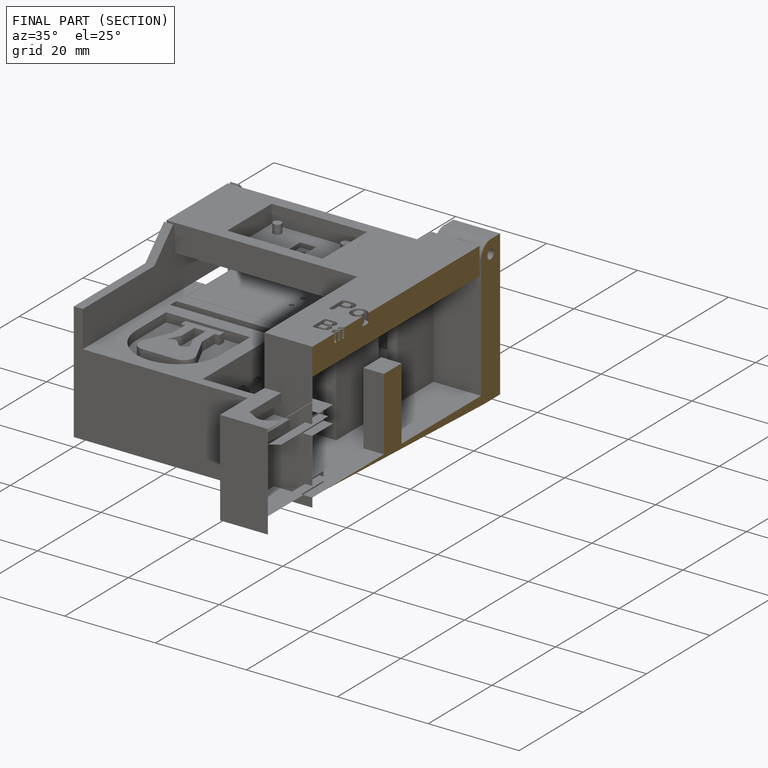
[diagram: finished part — half-section view (interior)]
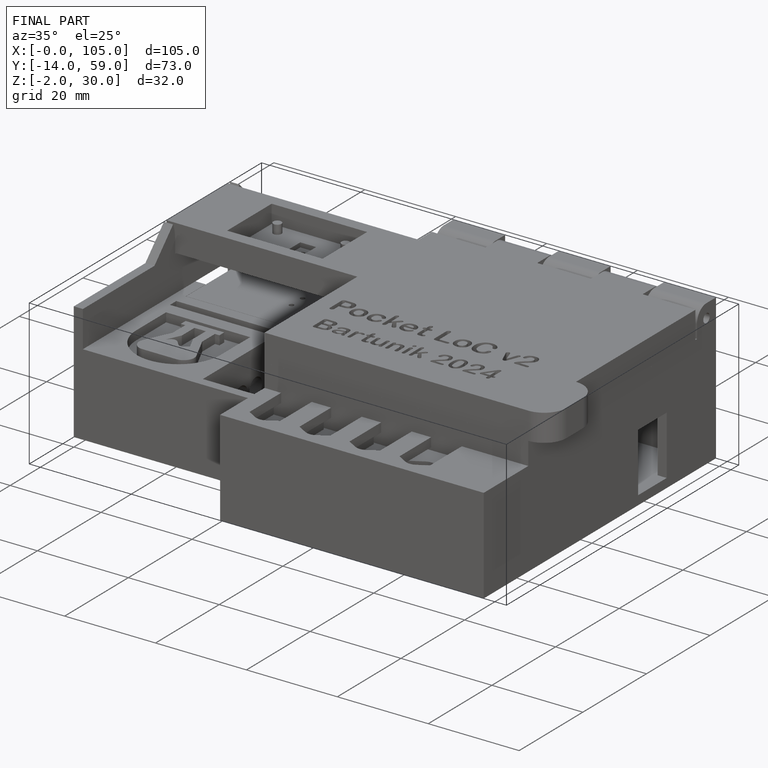
[diagram: finished part — iso view with bounding-box wireframe]
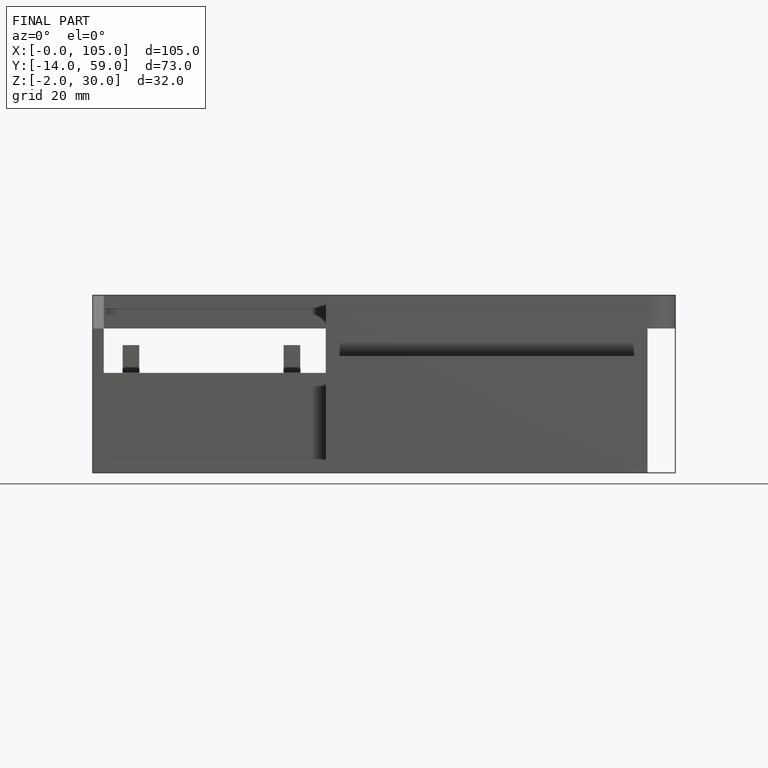
[diagram: finished part — front view with bounding-box wireframe]
